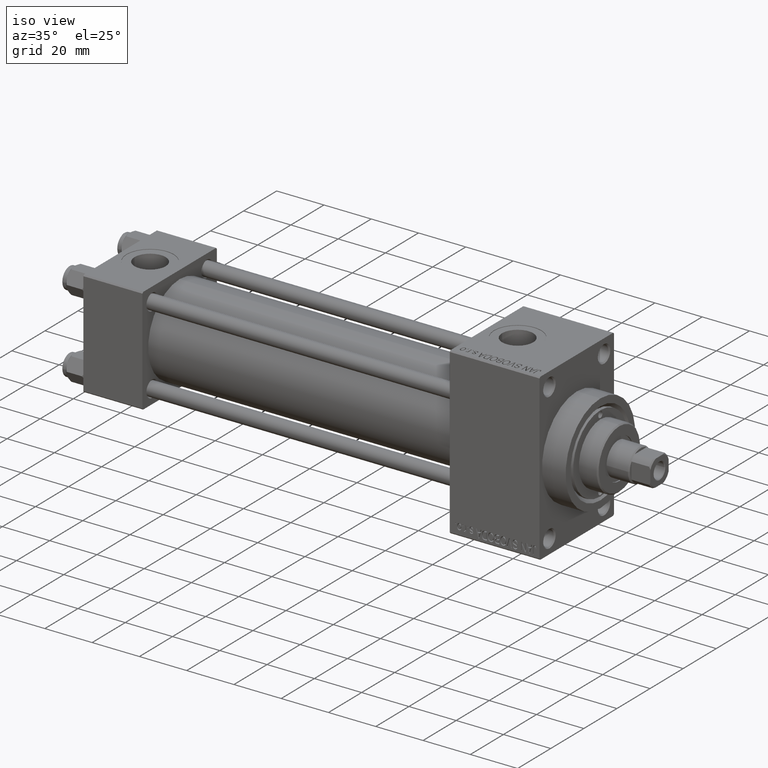
[diagram: clean part render]
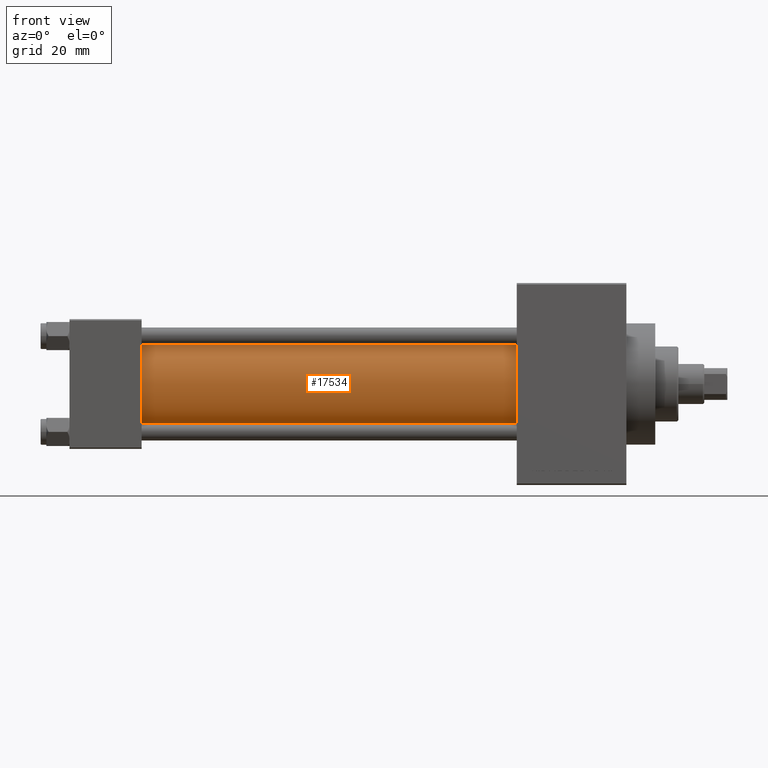
[diagram: tour spotlight — one face highlighted and labeled with its STEP entity id]
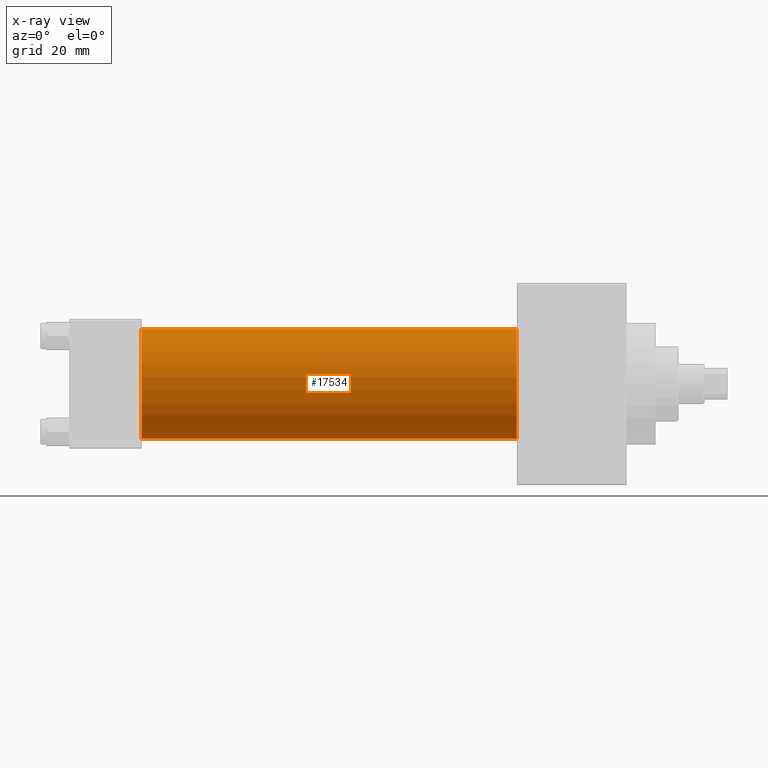
[diagram: x-ray of the same camera — body ghosted, this tour face saturated]
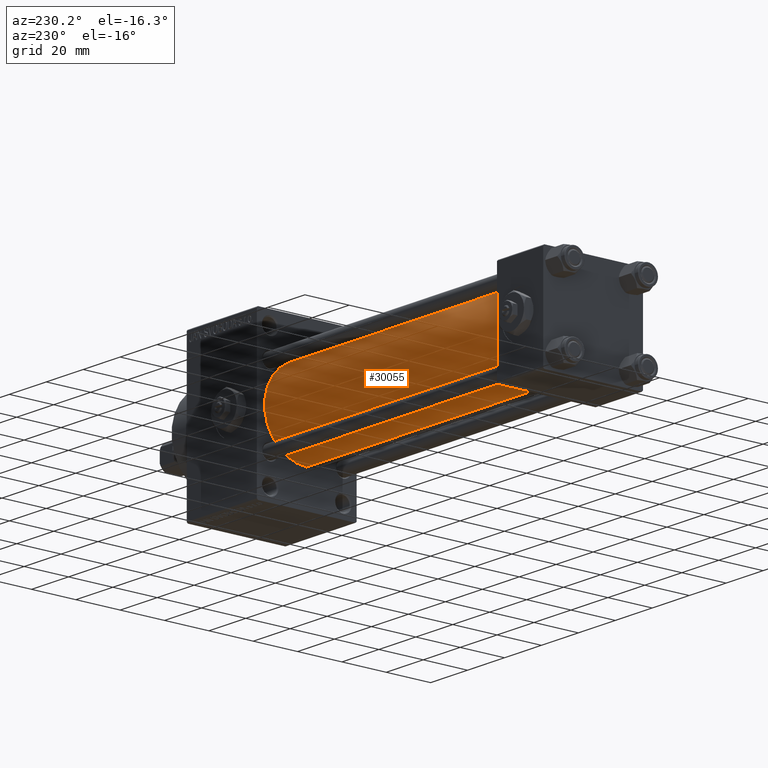
[diagram: tour spotlight — one face highlighted and labeled with its STEP entity id]
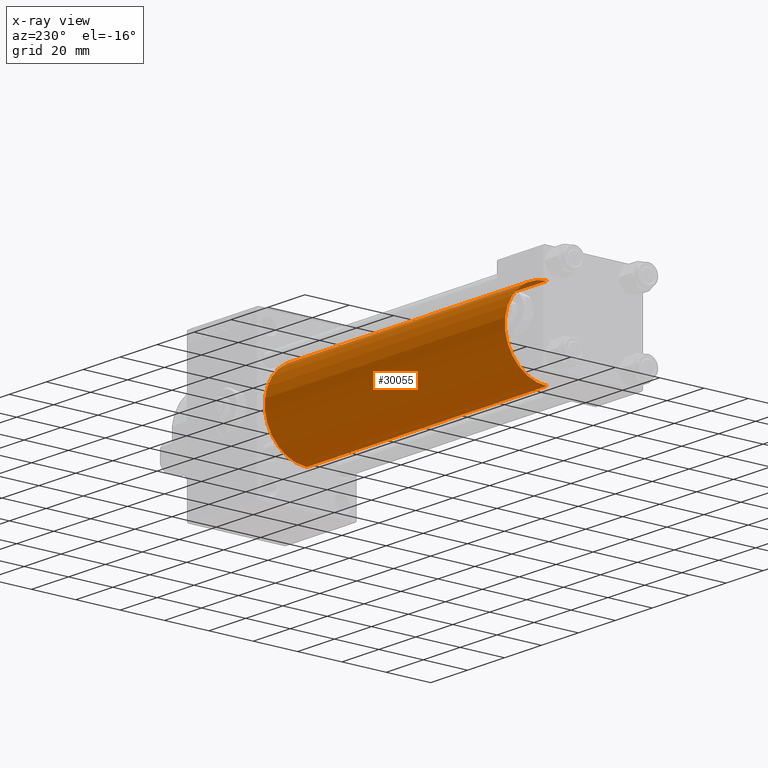
[diagram: x-ray of the same camera — body ghosted, this tour face saturated]
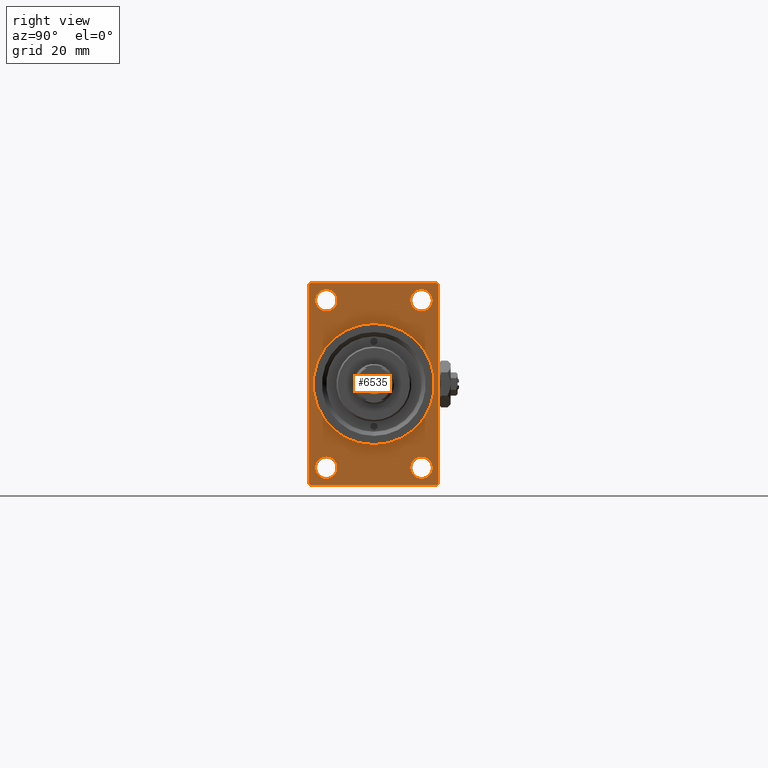
[diagram: tour spotlight — one face highlighted and labeled with its STEP entity id]
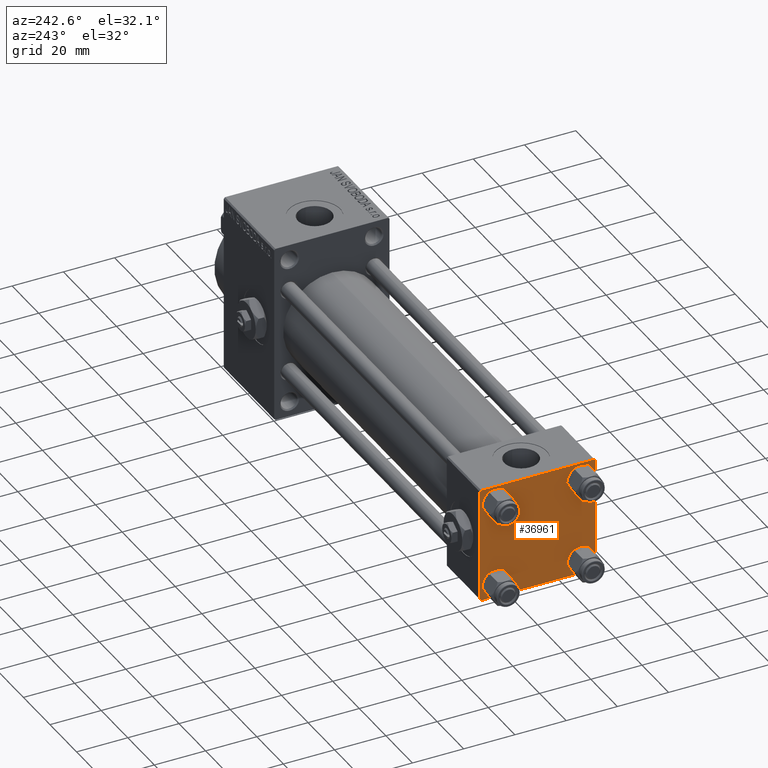
[diagram: tour spotlight — one face highlighted and labeled with its STEP entity id]
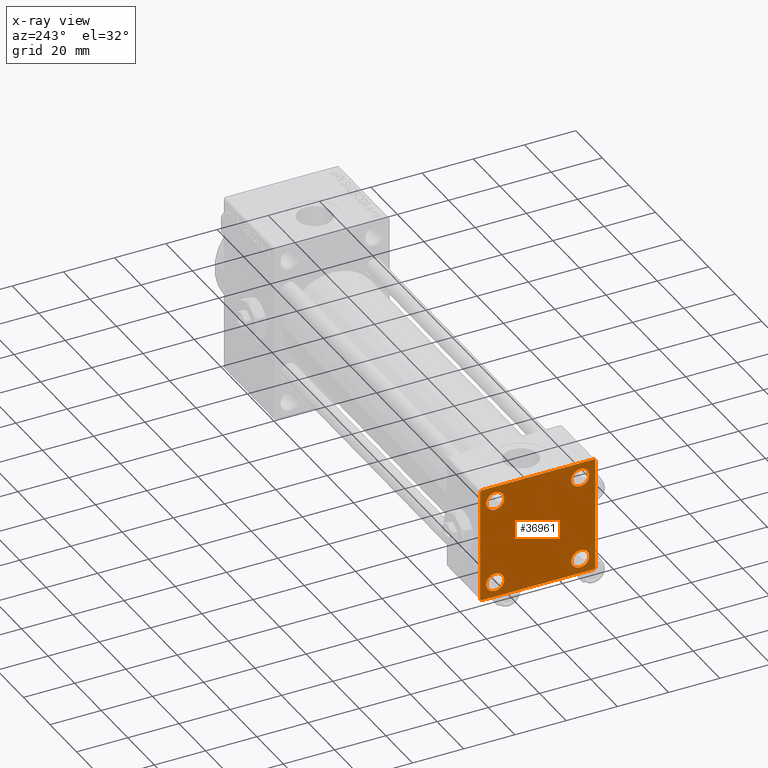
[diagram: x-ray of the same camera — body ghosted, this tour face saturated]
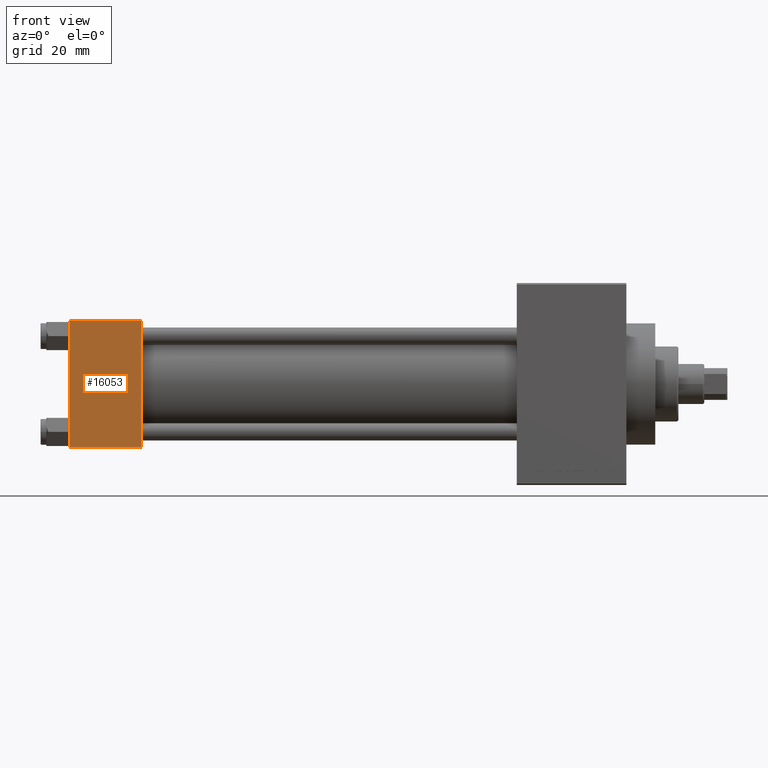
[diagram: tour spotlight — one face highlighted and labeled with its STEP entity id]
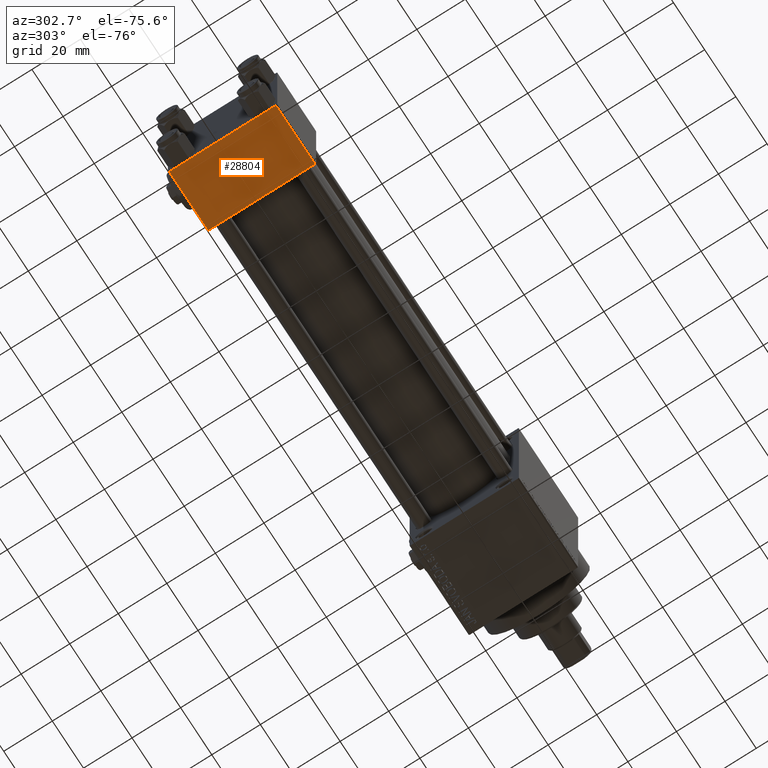
[diagram: tour spotlight — one face highlighted and labeled with its STEP entity id]
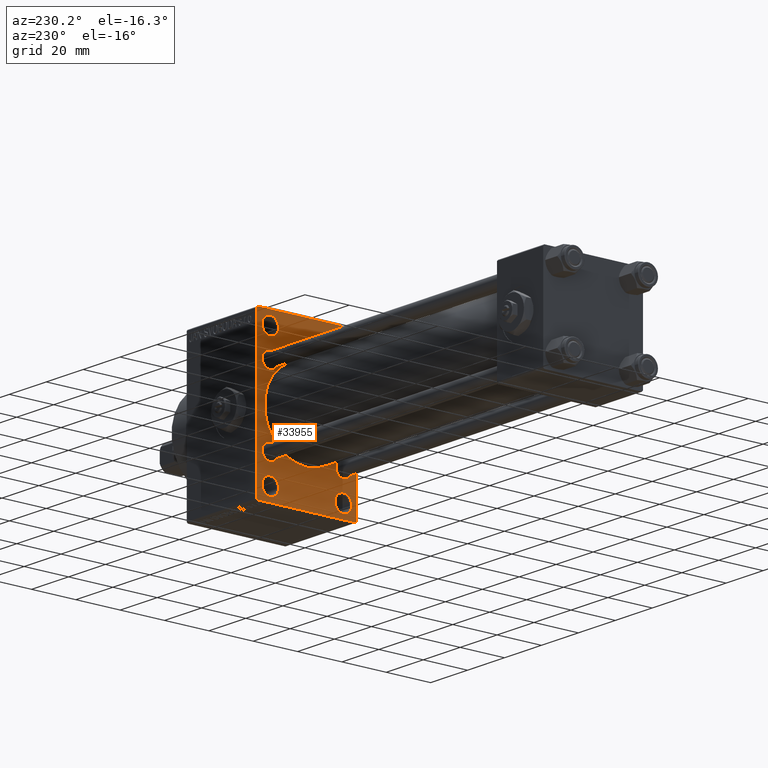
[diagram: tour spotlight — one face highlighted and labeled with its STEP entity id]
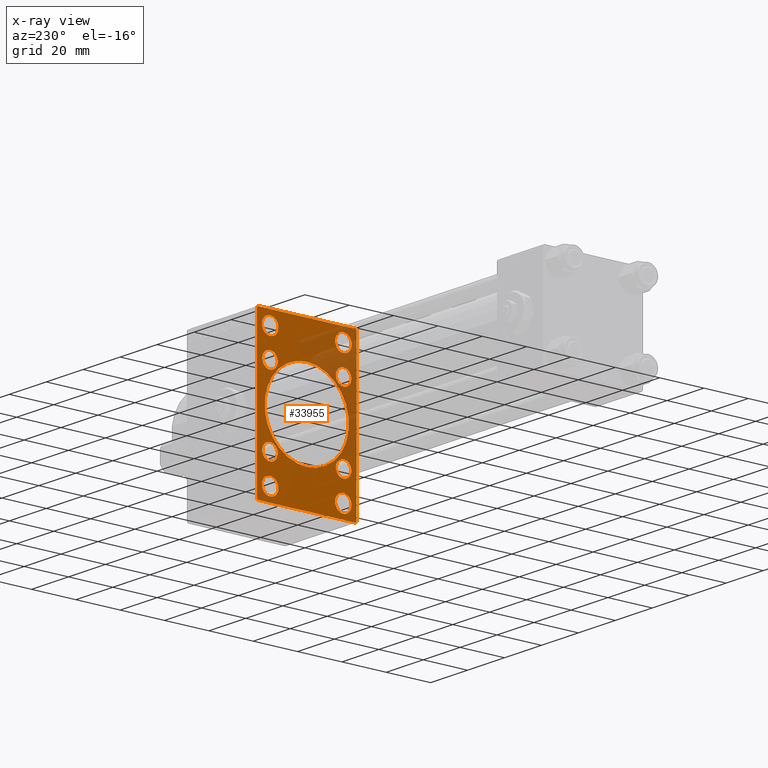
[diagram: x-ray of the same camera — body ghosted, this tour face saturated]
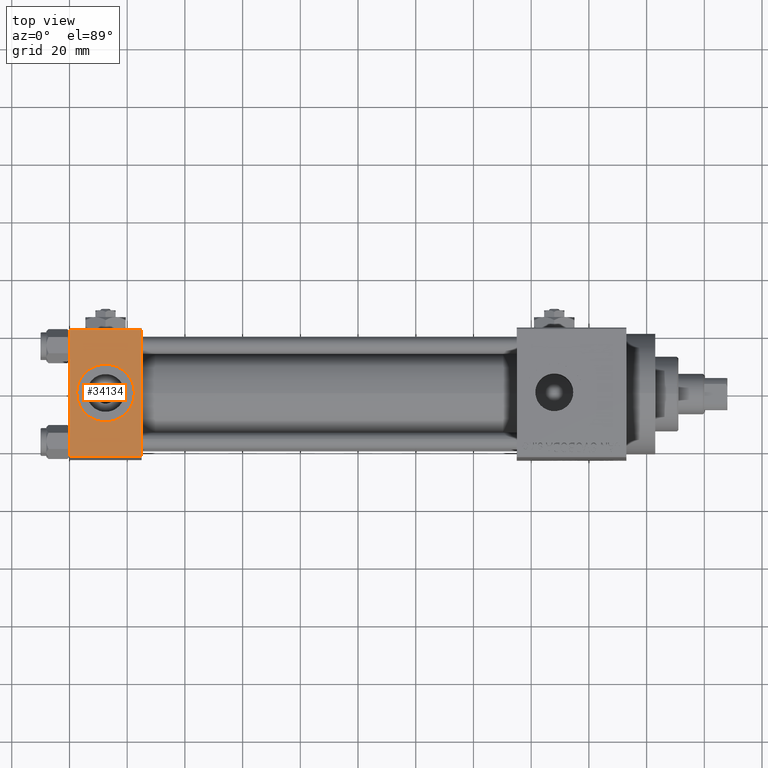
[diagram: tour spotlight — one face highlighted and labeled with its STEP entity id]
A machine part: a face-by-face anatomy tour. The part has 1209 B-rep faces; the first image is the clean iso view, then the 8 largest visible faces are spotlighted one at a time (largest first), each with its STEP entity span.

Face 1 — front view, entity #17534. An x-ray twin of the same camera follows (body ghosted, this face saturated) — the face is partly hidden behind the body. In plain terms, the highlighted cylindrical surface (partial cylindrical patch) has radius 19 mm, axis along (-1, -0, -0).
Definition (entity closure, byte-faithful):
#3418 = DIRECTION ( 'NONE',  ( 1.000000000000000000, 0.000000000000000000, 0.000000000000000000 ) ) ;
#3867 = DIRECTION ( 'NONE',  ( -1.000000000000000000, -0.000000000000000000, -0.000000000000000000 ) ) ;
#4155 = DIRECTION ( 'NONE',  ( 0.000000000000000000, 0.000000000000000000, -1.000000000000000000 ) ) ;
#4572 = EDGE_CURVE ( 'NONE', #40999, #31144, #42538, .T. ) ;
#4775 = VECTOR ( 'NONE', #10245, 1000.000000000000000 ) ;
#6177 = CYLINDRICAL_SURFACE ( 'NONE', #20118, 19.00000000000000000 ) ;
#9605 = CARTESIAN_POINT ( 'NONE',  ( 24.99999999999999289, -2.602085213965210642E-15, 0.000000000000000000 ) ) ;
#10245 = DIRECTION ( 'NONE',  ( -1.000000000000000000, -0.000000000000000000, -0.000000000000000000 ) ) ;
#13273 = CIRCLE ( 'NONE', #21940, 19.00000000000000000 ) ;
#13573 = CIRCLE ( 'NONE', #32628, 19.00000000000000000 ) ;
#14321 = VERTEX_POINT ( 'NONE', #24750 ) ;
#15579 = CARTESIAN_POINT ( 'NONE',  ( 155.0000000000000000, -2.752562955852396712E-16, -19.00000000000000000 ) ) ;
#17534 = ADVANCED_FACE ( 'NONE', ( #17882 ), #6177, .T. ) ;
#17882 = FACE_OUTER_BOUND ( 'NONE', #37729, .T. ) ;
#20118 = AXIS2_PLACEMENT_3D ( 'NONE', #21394, #49071, #37631 ) ;
#20584 = CARTESIAN_POINT ( 'NONE',  ( 24.99999999999999289, -2.752562955852396712E-16, -19.00000000000000000 ) ) ;
#21394 = CARTESIAN_POINT ( 'NONE',  ( 155.0000000000000000, -2.602085213965210642E-15, 0.000000000000000000 ) ) ;
#21940 = AXIS2_PLACEMENT_3D ( 'NONE', #29862, #3418, #4155 ) ;
#24750 = CARTESIAN_POINT ( 'NONE',  ( 155.0000000000000000, -2.602085213965210642E-15, 19.00000000000000000 ) ) ;
#26102 = ORIENTED_EDGE ( 'NONE', *, *, #4572, .F. ) ;
#27235 = EDGE_CURVE ( 'NONE', #14321, #40999, #13273, .T. ) ;
#27353 = ORIENTED_EDGE ( 'NONE', *, *, #31246, .T. ) ;
#28445 = EDGE_CURVE ( 'NONE', #14321, #33810, #44212, .T. ) ;
#29862 = CARTESIAN_POINT ( 'NONE',  ( 155.0000000000000000, -2.602085213965210642E-15, 0.000000000000000000 ) ) ;
#30350 = ORIENTED_EDGE ( 'NONE', *, *, #28445, .T. ) ;
#31144 = VERTEX_POINT ( 'NONE', #20584 ) ;
#31246 = EDGE_CURVE ( 'NONE', #33810, #31144, #13573, .T. ) ;
#32098 = DIRECTION ( 'NONE',  ( 1.000000000000000000, -0.000000000000000000, 0.000000000000000000 ) ) ;
#32628 = AXIS2_PLACEMENT_3D ( 'NONE', #9605, #32098, #48023 ) ;
#32986 = CARTESIAN_POINT ( 'NONE',  ( 155.0000000000000000, -2.602085213965210642E-15, 19.00000000000000000 ) ) ;
#33810 = VERTEX_POINT ( 'NONE', #48715 ) ;
#35716 = VECTOR ( 'NONE', #3867, 1000.000000000000000 ) ;
#37631 = DIRECTION ( 'NONE',  ( 0.000000000000000000, 0.000000000000000000, 1.000000000000000000 ) ) ;
#37729 = EDGE_LOOP ( 'NONE', ( #26102, #43482, #30350, #27353 ) ) ;
#40999 = VERTEX_POINT ( 'NONE', #43545 ) ;
#42538 = LINE ( 'NONE', #15579, #35716 ) ;
#43482 = ORIENTED_EDGE ( 'NONE', *, *, #27235, .F. ) ;
#43545 = CARTESIAN_POINT ( 'NONE',  ( 155.0000000000000000, -2.752562955852396712E-16, -19.00000000000000000 ) ) ;
#44212 = LINE ( 'NONE', #32986, #4775 ) ;
#48023 = DIRECTION ( 'NONE',  ( 0.000000000000000000, 0.000000000000000000, 1.000000000000000000 ) ) ;
#48715 = CARTESIAN_POINT ( 'NONE',  ( 24.99999999999999289, -2.602085213965210642E-15, 19.00000000000000000 ) ) ;
#49071 = DIRECTION ( 'NONE',  ( -1.000000000000000000, -0.000000000000000000, -0.000000000000000000 ) ) ;

Face 2 — auxiliary view, entity #30055. An x-ray twin of the same camera follows (body ghosted, this face saturated) — the face is partly hidden behind the body. In plain terms, the highlighted cylindrical surface (partial cylindrical patch) has radius 19 mm, axis along (-1, -0, -0).
Definition (entity closure, byte-faithful):
#3867 = DIRECTION ( 'NONE',  ( -1.000000000000000000, -0.000000000000000000, -0.000000000000000000 ) ) ;
#4572 = EDGE_CURVE ( 'NONE', #40999, #31144, #42538, .T. ) ;
#4649 = EDGE_CURVE ( 'NONE', #31144, #33810, #20553, .T. ) ;
#4775 = VECTOR ( 'NONE', #10245, 1000.000000000000000 ) ;
#5523 = CARTESIAN_POINT ( 'NONE',  ( 155.0000000000000000, -2.602085213965210642E-15, 0.000000000000000000 ) ) ;
#8344 = CARTESIAN_POINT ( 'NONE',  ( 24.99999999999999289, -2.602085213965210642E-15, 0.000000000000000000 ) ) ;
#9495 = DIRECTION ( 'NONE',  ( 0.000000000000000000, 0.000000000000000000, -1.000000000000000000 ) ) ;
#10245 = DIRECTION ( 'NONE',  ( -1.000000000000000000, -0.000000000000000000, -0.000000000000000000 ) ) ;
#11075 = DIRECTION ( 'NONE',  ( 0.000000000000000000, 0.000000000000000000, 1.000000000000000000 ) ) ;
#11119 = DIRECTION ( 'NONE',  ( -1.000000000000000000, -0.000000000000000000, -0.000000000000000000 ) ) ;
#14321 = VERTEX_POINT ( 'NONE', #24750 ) ;
#14625 = CYLINDRICAL_SURFACE ( 'NONE', #48631, 19.00000000000000000 ) ;
#14876 = DIRECTION ( 'NONE',  ( 0.000000000000000000, 0.000000000000000000, 1.000000000000000000 ) ) ;
#15579 = CARTESIAN_POINT ( 'NONE',  ( 155.0000000000000000, -2.752562955852396712E-16, -19.00000000000000000 ) ) ;
#17476 = EDGE_LOOP ( 'NONE', ( #26948, #33455, #34117, #21149 ) ) ;
#18826 = DIRECTION ( 'NONE',  ( 1.000000000000000000, -0.000000000000000000, 0.000000000000000000 ) ) ;
#20553 = CIRCLE ( 'NONE', #22958, 19.00000000000000000 ) ;
#20584 = CARTESIAN_POINT ( 'NONE',  ( 24.99999999999999289, -2.752562955852396712E-16, -19.00000000000000000 ) ) ;
#21149 = ORIENTED_EDGE ( 'NONE', *, *, #28445, .F. ) ;
#22958 = AXIS2_PLACEMENT_3D ( 'NONE', #8344, #18826, #11075 ) ;
#23102 = FACE_OUTER_BOUND ( 'NONE', #17476, .T. ) ;
#24562 = EDGE_CURVE ( 'NONE', #40999, #14321, #46662, .T. ) ;
#24750 = CARTESIAN_POINT ( 'NONE',  ( 155.0000000000000000, -2.602085213965210642E-15, 19.00000000000000000 ) ) ;
#26109 = CARTESIAN_POINT ( 'NONE',  ( 155.0000000000000000, -2.602085213965210642E-15, 0.000000000000000000 ) ) ;
#26948 = ORIENTED_EDGE ( 'NONE', *, *, #24562, .F. ) ;
#28445 = EDGE_CURVE ( 'NONE', #14321, #33810, #44212, .T. ) ;
#29136 = AXIS2_PLACEMENT_3D ( 'NONE', #5523, #39967, #9495 ) ;
#30055 = ADVANCED_FACE ( 'NONE', ( #23102 ), #14625, .T. ) ;
#31144 = VERTEX_POINT ( 'NONE', #20584 ) ;
#32986 = CARTESIAN_POINT ( 'NONE',  ( 155.0000000000000000, -2.602085213965210642E-15, 19.00000000000000000 ) ) ;
#33455 = ORIENTED_EDGE ( 'NONE', *, *, #4572, .T. ) ;
#33810 = VERTEX_POINT ( 'NONE', #48715 ) ;
#34117 = ORIENTED_EDGE ( 'NONE', *, *, #4649, .T. ) ;
#35716 = VECTOR ( 'NONE', #3867, 1000.000000000000000 ) ;
#39967 = DIRECTION ( 'NONE',  ( 1.000000000000000000, 0.000000000000000000, 0.000000000000000000 ) ) ;
#40999 = VERTEX_POINT ( 'NONE', #43545 ) ;
#42538 = LINE ( 'NONE', #15579, #35716 ) ;
#43545 = CARTESIAN_POINT ( 'NONE',  ( 155.0000000000000000, -2.752562955852396712E-16, -19.00000000000000000 ) ) ;
#44212 = LINE ( 'NONE', #32986, #4775 ) ;
#46662 = CIRCLE ( 'NONE', #29136, 19.00000000000000000 ) ;
#48631 = AXIS2_PLACEMENT_3D ( 'NONE', #26109, #11119, #14876 ) ;
#48715 = CARTESIAN_POINT ( 'NONE',  ( 24.99999999999999289, -2.602085213965210642E-15, 19.00000000000000000 ) ) ;

Face 3 — right view, entity #6535. In plain terms, the highlighted planar face has unit normal (-1, 0, 0).
Definition (entity closure, byte-faithful):
#11 = CARTESIAN_POINT ( 'NONE',  ( 193.0000000000000000, -22.50000000000000355, 34.50000000000000000 ) ) ;
#394 = CIRCLE ( 'NONE', #28269, 3.750000000000083045 ) ;
#415 = VECTOR ( 'NONE', #41721, 1000.000000000000114 ) ;
#511 = EDGE_CURVE ( 'NONE', #22625, #29314, #3801, .T. ) ;
#516 = CARTESIAN_POINT ( 'NONE',  ( 193.0000000000000000, 22.49999999999999645, 35.00000000000000000 ) ) ;
#519 = ORIENTED_EDGE ( 'NONE', *, *, #44857, .T. ) ;
#1071 = EDGE_CURVE ( 'NONE', #11687, #27825, #22825, .T. ) ;
#1430 = VERTEX_POINT ( 'NONE', #21723 ) ;
#1616 = ORIENTED_EDGE ( 'NONE', *, *, #22415, .T. ) ;
#1631 = EDGE_CURVE ( 'NONE', #33357, #11687, #37218, .T. ) ;
#2189 = EDGE_CURVE ( 'NONE', #21385, #1430, #20486, .T. ) ;
#2436 = VERTEX_POINT ( 'NONE', #22859 ) ;
#3137 = FACE_BOUND ( 'NONE', #19921, .T. ) ;
#3491 = VERTEX_POINT ( 'NONE', #4228 ) ;
#3507 = LINE ( 'NONE', #516, #28857 ) ;
#3523 = ORIENTED_EDGE ( 'NONE', *, *, #1631, .T. ) ;
#3801 = LINE ( 'NONE', #22019, #15165 ) ;
#4228 = CARTESIAN_POINT ( 'NONE',  ( 193.0000000000000000, 22.49999999999999645, 34.50000000000000000 ) ) ;
#4303 = VERTEX_POINT ( 'NONE', #48090 ) ;
#5357 = EDGE_CURVE ( 'NONE', #21933, #2436, #18993, .T. ) ;
#5767 = VECTOR ( 'NONE', #14835, 1000.000000000000000 ) ;
#6535 = ADVANCED_FACE ( 'NONE', ( #21353, #17590, #3137, #29830, #7116, #31073 ), #46278, .F. ) ;
#7058 = EDGE_CURVE ( 'NONE', #34478, #33357, #46943, .T. ) ;
#7116 = FACE_BOUND ( 'NONE', #33068, .T. ) ;
#7242 = VERTEX_POINT ( 'NONE', #33715 ) ;
#7270 = DIRECTION ( 'NONE',  ( 0.000000000000000000, 0.000000000000000000, 1.000000000000000000 ) ) ;
#7385 = CIRCLE ( 'NONE', #26400, 3.750000000000086597 ) ;
#7431 = CARTESIAN_POINT ( 'NONE',  ( 193.0000000000000000, -21.99999999999998934, 35.00000000000000000 ) ) ;
#7488 = DIRECTION ( 'NONE',  ( -0.000000000000000000, -0.7071067811865474617, -0.7071067811865474617 ) ) ;
#7803 = EDGE_CURVE ( 'NONE', #2436, #21933, #46183, .T. ) ;
#7881 = ORIENTED_EDGE ( 'NONE', *, *, #511, .F. ) ;
#8397 = DIRECTION ( 'NONE',  ( -1.000000000000000000, -0.000000000000000000, -0.000000000000000000 ) ) ;
#8788 = EDGE_LOOP ( 'NONE', ( #26428, #28320 ) ) ;
#8966 = CARTESIAN_POINT ( 'NONE',  ( 193.0000000000000000, -16.50000000000000000, -25.24999999999990763 ) ) ;
#9993 = ORIENTED_EDGE ( 'NONE', *, *, #14512, .T. ) ;
#9999 = CARTESIAN_POINT ( 'NONE',  ( 193.0000000000000000, -22.00000000000000355, -35.00000000000000000 ) ) ;
#10265 = CARTESIAN_POINT ( 'NONE',  ( 193.0000000000000000, -16.50000000000000000, 29.00000000000000711 ) ) ;
#10371 = CARTESIAN_POINT ( 'NONE',  ( 193.0000000000000000, 0.000000000000000000, 21.00000000000000000 ) ) ;
#10565 = VERTEX_POINT ( 'NONE', #8966 ) ;
#11388 = CIRCLE ( 'NONE', #32190, 3.750000000000090150 ) ;
#11687 = VERTEX_POINT ( 'NONE', #18564 ) ;
#12396 = AXIS2_PLACEMENT_3D ( 'NONE', #20476, #46934, #16484 ) ;
#12502 = CARTESIAN_POINT ( 'NONE',  ( 193.0000000000000000, -16.50000000000000000, -28.99999999999999289 ) ) ;
#13327 = CARTESIAN_POINT ( 'NONE',  ( 193.0000000000000000, -21.99999999999998934, -35.00000000000000000 ) ) ;
#13457 = EDGE_CURVE ( 'NONE', #3491, #46268, #3507, .T. ) ;
#13943 = AXIS2_PLACEMENT_3D ( 'NONE', #14644, #45100, #46082 ) ;
#14351 = CARTESIAN_POINT ( 'NONE',  ( 193.0000000000000000, 21.99999999999999645, 35.00000000000000000 ) ) ;
#14512 = EDGE_CURVE ( 'NONE', #44821, #7242, #7385, .T. ) ;
#14514 = DIRECTION ( 'NONE',  ( 0.000000000000000000, -1.000000000000000000, 0.000000000000000000 ) ) ;
#14584 = CARTESIAN_POINT ( 'NONE',  ( 193.0000000000000000, -22.50000000000000355, 35.00000000000000000 ) ) ;
#14644 = CARTESIAN_POINT ( 'NONE',  ( 193.0000000000000000, 0.000000000000000000, 0.000000000000000000 ) ) ;
#14835 = DIRECTION ( 'NONE',  ( 0.000000000000000000, 0.000000000000000000, -1.000000000000000000 ) ) ;
#14988 = ORIENTED_EDGE ( 'NONE', *, *, #13457, .F. ) ;
#15165 = VECTOR ( 'NONE', #14514, 1000.000000000000000 ) ;
#15514 = AXIS2_PLACEMENT_3D ( 'NONE', #45063, #29839, #37344 ) ;
#16484 = DIRECTION ( 'NONE',  ( 0.000000000000000000, 0.000000000000000000, 1.000000000000000000 ) ) ;
#17412 = AXIS2_PLACEMENT_3D ( 'NONE', #23372, #8397, #41610 ) ;
#17590 = FACE_BOUND ( 'NONE', #8788, .T. ) ;
#17911 = CARTESIAN_POINT ( 'NONE',  ( 193.0000000000000000, -22.50000000000000355, -34.50000000000000000 ) ) ;
#18224 = ORIENTED_EDGE ( 'NONE', *, *, #1071, .T. ) ;
#18564 = CARTESIAN_POINT ( 'NONE',  ( 193.0000000000000000, -22.50000000000000355, 34.50000000000000000 ) ) ;
#18729 = CIRCLE ( 'NONE', #13943, 21.00000000000000000 ) ;
#18782 = DIRECTION ( 'NONE',  ( -1.000000000000000000, -0.000000000000000000, -0.000000000000000000 ) ) ;
#18984 = DIRECTION ( 'NONE',  ( -1.000000000000000000, -0.000000000000000000, -0.000000000000000000 ) ) ;
#18993 = CIRCLE ( 'NONE', #17412, 3.750000000000090150 ) ;
#18996 = EDGE_CURVE ( 'NONE', #10565, #37507, #11388, .T. ) ;
#19184 = CIRCLE ( 'NONE', #47064, 3.750000000000086597 ) ;
#19921 = EDGE_LOOP ( 'NONE', ( #35089, #28332 ) ) ;
#19997 = VECTOR ( 'NONE', #40958, 1000.000000000000114 ) ;
#20201 = ORIENTED_EDGE ( 'NONE', *, *, #35027, .T. ) ;
#20476 = CARTESIAN_POINT ( 'NONE',  ( 193.0000000000000000, -16.50000000000000000, -28.99999999999999289 ) ) ;
#20486 = CIRCLE ( 'NONE', #48378, 3.750000000000083045 ) ;
#20999 = CIRCLE ( 'NONE', #15514, 21.00000000000000000 ) ;
#21005 = DIRECTION ( 'NONE',  ( 0.000000000000000000, 0.000000000000000000, 1.000000000000000000 ) ) ;
#21353 = FACE_BOUND ( 'NONE', #26359, .T. ) ;
#21385 = VERTEX_POINT ( 'NONE', #33088 ) ;
#21519 = EDGE_LOOP ( 'NONE', ( #18224, #20201, #7881, #1616, #14988, #519, #36967, #3523 ) ) ;
#21723 = CARTESIAN_POINT ( 'NONE',  ( 193.0000000000000000, -16.50000000000000000, 32.75000000000009237 ) ) ;
#21933 = VERTEX_POINT ( 'NONE', #27742 ) ;
#22019 = CARTESIAN_POINT ( 'NONE',  ( 193.0000000000000000, 22.49999999999999645, -35.00000000000000000 ) ) ;
#22310 = ORIENTED_EDGE ( 'NONE', *, *, #34568, .T. ) ;
#22415 = EDGE_CURVE ( 'NONE', #22625, #46268, #37993, .T. ) ;
#22532 = DIRECTION ( 'NONE',  ( 0.000000000000000000, 0.000000000000000000, 1.000000000000000000 ) ) ;
#22625 = VERTEX_POINT ( 'NONE', #32691 ) ;
#22825 = LINE ( 'NONE', #14584, #5767 ) ;
#22859 = CARTESIAN_POINT ( 'NONE',  ( 193.0000000000000000, 16.50000000000000000, -25.24999999999990763 ) ) ;
#23372 = CARTESIAN_POINT ( 'NONE',  ( 193.0000000000000000, 16.50000000000000000, -28.99999999999999289 ) ) ;
#23518 = DIRECTION ( 'NONE',  ( 0.000000000000000000, -1.000000000000000000, 0.000000000000000000 ) ) ;
#23698 = EDGE_CURVE ( 'NONE', #45707, #4303, #18729, .T. ) ;
#23745 = DIRECTION ( 'NONE',  ( -1.000000000000000000, -0.000000000000000000, -0.000000000000000000 ) ) ;
#23788 = ORIENTED_EDGE ( 'NONE', *, *, #2189, .T. ) ;
#24241 = CARTESIAN_POINT ( 'NONE',  ( 193.0000000000000000, -16.50000000000000000, 29.00000000000000711 ) ) ;
#24978 = VECTOR ( 'NONE', #37346, 1000.000000000000114 ) ;
#26090 = CARTESIAN_POINT ( 'NONE',  ( 193.0000000000000000, 16.50000000000000000, 32.75000000000009237 ) ) ;
#26359 = EDGE_LOOP ( 'NONE', ( #23788, #46773 ) ) ;
#26400 = AXIS2_PLACEMENT_3D ( 'NONE', #29977, #18984, #7270 ) ;
#26428 = ORIENTED_EDGE ( 'NONE', *, *, #49212, .T. ) ;
#26832 = DIRECTION ( 'NONE',  ( -0.000000000000000000, 0.000000000000000000, 1.000000000000000000 ) ) ;
#27742 = CARTESIAN_POINT ( 'NONE',  ( 193.0000000000000000, 16.50000000000000000, -32.75000000000008527 ) ) ;
#27825 = VERTEX_POINT ( 'NONE', #17911 ) ;
#28269 = AXIS2_PLACEMENT_3D ( 'NONE', #24241, #40463, #21005 ) ;
#28320 = ORIENTED_EDGE ( 'NONE', *, *, #18996, .T. ) ;
#28332 = ORIENTED_EDGE ( 'NONE', *, *, #7803, .T. ) ;
#28857 = VECTOR ( 'NONE', #30197, 1000.000000000000000 ) ;
#29314 = VERTEX_POINT ( 'NONE', #13327 ) ;
#29830 = FACE_BOUND ( 'NONE', #44606, .T. ) ;
#29839 = DIRECTION ( 'NONE',  ( 1.000000000000000000, 0.000000000000000000, 0.000000000000000000 ) ) ;
#29977 = CARTESIAN_POINT ( 'NONE',  ( 193.0000000000000000, 16.50000000000000000, 29.00000000000000355 ) ) ;
#30197 = DIRECTION ( 'NONE',  ( 0.000000000000000000, 0.000000000000000000, -1.000000000000000000 ) ) ;
#31073 = FACE_OUTER_BOUND ( 'NONE', #21519, .T. ) ;
#31823 = AXIS2_PLACEMENT_3D ( 'NONE', #45236, #18782, #22532 ) ;
#32190 = AXIS2_PLACEMENT_3D ( 'NONE', #12502, #23745, #38989 ) ;
#32520 = DIRECTION ( 'NONE',  ( 0.000000000000000000, 0.000000000000000000, 1.000000000000000000 ) ) ;
#32691 = CARTESIAN_POINT ( 'NONE',  ( 193.0000000000000000, 21.99999999999999645, -35.00000000000000000 ) ) ;
#33068 = EDGE_LOOP ( 'NONE', ( #44904, #46307 ) ) ;
#33088 = CARTESIAN_POINT ( 'NONE',  ( 193.0000000000000000, -16.50000000000000000, 25.24999999999992539 ) ) ;
#33357 = VERTEX_POINT ( 'NONE', #7431 ) ;
#33531 = DIRECTION ( 'NONE',  ( 0.000000000000000000, 0.000000000000000000, 1.000000000000000000 ) ) ;
#33715 = CARTESIAN_POINT ( 'NONE',  ( 193.0000000000000000, 16.50000000000000000, 25.24999999999991829 ) ) ;
#33940 = CIRCLE ( 'NONE', #12396, 3.750000000000090150 ) ;
#34478 = VERTEX_POINT ( 'NONE', #48591 ) ;
#34568 = EDGE_CURVE ( 'NONE', #7242, #44821, #19184, .T. ) ;
#35027 = EDGE_CURVE ( 'NONE', #27825, #29314, #44205, .T. ) ;
#35089 = ORIENTED_EDGE ( 'NONE', *, *, #5357, .T. ) ;
#36014 = DIRECTION ( 'NONE',  ( -1.000000000000000000, -0.000000000000000000, -0.000000000000000000 ) ) ;
#36967 = ORIENTED_EDGE ( 'NONE', *, *, #7058, .T. ) ;
#37029 = CARTESIAN_POINT ( 'NONE',  ( 193.0000000000000000, 16.50000000000000000, 29.00000000000000355 ) ) ;
#37218 = LINE ( 'NONE', #11, #38463 ) ;
#37344 = DIRECTION ( 'NONE',  ( 0.000000000000000000, 0.000000000000000000, -1.000000000000000000 ) ) ;
#37346 = DIRECTION ( 'NONE',  ( 0.000000000000000000, -0.7071067811865474617, 0.7071067811865474617 ) ) ;
#37507 = VERTEX_POINT ( 'NONE', #48391 ) ;
#37529 = DIRECTION ( 'NONE',  ( -1.000000000000000000, -0.000000000000000000, -0.000000000000000000 ) ) ;
#37993 = LINE ( 'NONE', #38234, #415 ) ;
#38230 = VECTOR ( 'NONE', #23518, 1000.000000000000000 ) ;
#38234 = CARTESIAN_POINT ( 'NONE',  ( 193.0000000000000000, 22.49999999999999645, -34.50000000000000000 ) ) ;
#38463 = VECTOR ( 'NONE', #7488, 1000.000000000000114 ) ;
#38989 = DIRECTION ( 'NONE',  ( 0.000000000000000000, 0.000000000000000000, 1.000000000000000000 ) ) ;
#40463 = DIRECTION ( 'NONE',  ( -1.000000000000000000, -0.000000000000000000, -0.000000000000000000 ) ) ;
#40958 = DIRECTION ( 'NONE',  ( 0.000000000000000000, 0.7071067811865474617, -0.7071067811865474617 ) ) ;
#40975 = CARTESIAN_POINT ( 'NONE',  ( 193.0000000000000000, 22.49999999999999645, -34.50000000000000000 ) ) ;
#41383 = AXIS2_PLACEMENT_3D ( 'NONE', #49267, #45784, #26832 ) ;
#41569 = LINE ( 'NONE', #14351, #24978 ) ;
#41610 = DIRECTION ( 'NONE',  ( 0.000000000000000000, 0.000000000000000000, 1.000000000000000000 ) ) ;
#41721 = DIRECTION ( 'NONE',  ( -0.000000000000000000, 0.7071067811865474617, 0.7071067811865474617 ) ) ;
#43214 = CARTESIAN_POINT ( 'NONE',  ( 193.0000000000000000, 22.49999999999999645, 35.00000000000000000 ) ) ;
#43521 = EDGE_CURVE ( 'NONE', #4303, #45707, #20999, .T. ) ;
#43961 = EDGE_CURVE ( 'NONE', #1430, #21385, #394, .T. ) ;
#44205 = LINE ( 'NONE', #9999, #19997 ) ;
#44606 = EDGE_LOOP ( 'NONE', ( #22310, #9993 ) ) ;
#44821 = VERTEX_POINT ( 'NONE', #26090 ) ;
#44857 = EDGE_CURVE ( 'NONE', #3491, #34478, #41569, .T. ) ;
#44904 = ORIENTED_EDGE ( 'NONE', *, *, #23698, .F. ) ;
#45063 = CARTESIAN_POINT ( 'NONE',  ( 193.0000000000000000, 0.000000000000000000, 0.000000000000000000 ) ) ;
#45100 = DIRECTION ( 'NONE',  ( 1.000000000000000000, 0.000000000000000000, 0.000000000000000000 ) ) ;
#45236 = CARTESIAN_POINT ( 'NONE',  ( 193.0000000000000000, 16.50000000000000000, -28.99999999999999289 ) ) ;
#45707 = VERTEX_POINT ( 'NONE', #10371 ) ;
#45784 = DIRECTION ( 'NONE',  ( -1.000000000000000000, 0.000000000000000000, -0.000000000000000000 ) ) ;
#46082 = DIRECTION ( 'NONE',  ( 0.000000000000000000, 0.000000000000000000, -1.000000000000000000 ) ) ;
#46183 = CIRCLE ( 'NONE', #31823, 3.750000000000090150 ) ;
#46268 = VERTEX_POINT ( 'NONE', #40975 ) ;
#46278 = PLANE ( 'NONE',  #41383 ) ;
#46307 = ORIENTED_EDGE ( 'NONE', *, *, #43521, .F. ) ;
#46773 = ORIENTED_EDGE ( 'NONE', *, *, #43961, .T. ) ;
#46934 = DIRECTION ( 'NONE',  ( -1.000000000000000000, -0.000000000000000000, -0.000000000000000000 ) ) ;
#46943 = LINE ( 'NONE', #43214, #38230 ) ;
#47064 = AXIS2_PLACEMENT_3D ( 'NONE', #37029, #37529, #33531 ) ;
#48090 = CARTESIAN_POINT ( 'NONE',  ( 193.0000000000000000, 2.571758278209441661E-15, -21.00000000000000000 ) ) ;
#48378 = AXIS2_PLACEMENT_3D ( 'NONE', #10265, #36014, #32520 ) ;
#48391 = CARTESIAN_POINT ( 'NONE',  ( 193.0000000000000000, -16.50000000000000000, -32.75000000000008527 ) ) ;
#48591 = CARTESIAN_POINT ( 'NONE',  ( 193.0000000000000000, 21.99999999999999645, 35.00000000000000000 ) ) ;
#49212 = EDGE_CURVE ( 'NONE', #37507, #10565, #33940, .T. ) ;
#49267 = CARTESIAN_POINT ( 'NONE',  ( 193.0000000000000000, 0.000000000000000000, 0.000000000000000000 ) ) ;

Face 4 — auxiliary view, entity #36961. An x-ray twin of the same camera follows (body ghosted, this face saturated) — the face is partly hidden behind the body. In plain terms, the highlighted planar face has unit normal (-1, 0, 0).
Definition (entity closure, byte-faithful):
#130 = DIRECTION ( 'NONE',  ( 0.000000000000000000, -1.000000000000000000, -7.709882115452476934E-17 ) ) ;
#194 = CARTESIAN_POINT ( 'NONE',  ( 0.000000000000000000, -22.50000000000000000, 22.50000000000000000 ) ) ;
#1064 = AXIS2_PLACEMENT_3D ( 'NONE', #11607, #38592, #43470 ) ;
#1095 = CIRCLE ( 'NONE', #1064, 3.499999999999996003 ) ;
#1332 = DIRECTION ( 'NONE',  ( 1.000000000000000000, -0.000000000000000000, 0.000000000000000000 ) ) ;
#1347 = DIRECTION ( 'NONE',  ( 0.000000000000000000, 0.000000000000000000, 1.000000000000000000 ) ) ;
#1493 = CARTESIAN_POINT ( 'NONE',  ( 0.000000000000000000, 16.59999999999999787, 13.10000000000000675 ) ) ;
#1601 = EDGE_CURVE ( 'NONE', #19255, #2936, #6753, .T. ) ;
#2661 = EDGE_CURVE ( 'NONE', #49233, #6155, #9102, .T. ) ;
#2931 = FACE_BOUND ( 'NONE', #5370, .T. ) ;
#2936 = VERTEX_POINT ( 'NONE', #40250 ) ;
#2999 = DIRECTION ( 'NONE',  ( 0.000000000000000000, 0.000000000000000000, 1.000000000000000000 ) ) ;
#3118 = VECTOR ( 'NONE', #49324, 1000.000000000000000 ) ;
#3132 = CIRCLE ( 'NONE', #32736, 3.499999999999996003 ) ;
#3336 = CIRCLE ( 'NONE', #16868, 3.499999999999996003 ) ;
#3848 = EDGE_CURVE ( 'NONE', #14183, #11655, #28514, .T. ) ;
#4094 = ORIENTED_EDGE ( 'NONE', *, *, #39920, .T. ) ;
#4160 = EDGE_CURVE ( 'NONE', #24441, #13091, #42413, .T. ) ;
#4246 = CARTESIAN_POINT ( 'NONE',  ( 0.000000000000000000, 16.59999999999999787, 20.10000000000000142 ) ) ;
#4472 = CIRCLE ( 'NONE', #43496, 3.499999999999996003 ) ;
#4966 = CIRCLE ( 'NONE', #24069, 3.499999999999996003 ) ;
#5124 = ORIENTED_EDGE ( 'NONE', *, *, #6297, .F. ) ;
#5224 = CARTESIAN_POINT ( 'NONE',  ( 0.000000000000000000, 22.50000000000000000, -21.99999999999996803 ) ) ;
#5370 = EDGE_LOOP ( 'NONE', ( #33673, #4094 ) ) ;
#6155 = VERTEX_POINT ( 'NONE', #14655 ) ;
#6297 = EDGE_CURVE ( 'NONE', #24441, #6155, #31126, .T. ) ;
#6345 = DIRECTION ( 'NONE',  ( 0.000000000000000000, -0.7071067811865426878, 0.7071067811865524577 ) ) ;
#6753 = LINE ( 'NONE', #44671, #46404 ) ;
#6915 = PLANE ( 'NONE',  #34452 ) ;
#8103 = CARTESIAN_POINT ( 'NONE',  ( 0.000000000000000000, 22.50000000000000000, 22.50000000000000355 ) ) ;
#8552 = CARTESIAN_POINT ( 'NONE',  ( 0.000000000000000000, 22.50000000000000000, -22.49999999999999645 ) ) ;
#9062 = DIRECTION ( 'NONE',  ( 1.000000000000000000, -0.000000000000000000, 0.000000000000000000 ) ) ;
#9088 = VECTOR ( 'NONE', #42015, 1000.000000000000000 ) ;
#9102 = LINE ( 'NONE', #25059, #31657 ) ;
#9198 = CIRCLE ( 'NONE', #14790, 3.499999999999996003 ) ;
#9974 = DIRECTION ( 'NONE',  ( 0.000000000000000000, 0.7071067811865474617, -0.7071067811865474617 ) ) ;
#10143 = FACE_BOUND ( 'NONE', #32823, .T. ) ;
#11085 = CARTESIAN_POINT ( 'NONE',  ( 0.000000000000000000, -21.99999999999997868, 22.50000000000000000 ) ) ;
#11336 = DIRECTION ( 'NONE',  ( 1.000000000000000000, -0.000000000000000000, 0.000000000000000000 ) ) ;
#11607 = CARTESIAN_POINT ( 'NONE',  ( 0.000000000000000000, 16.59999999999999787, 16.60000000000000497 ) ) ;
#11655 = VERTEX_POINT ( 'NONE', #37072 ) ;
#11693 = CARTESIAN_POINT ( 'NONE',  ( 0.000000000000000000, -16.59999999999999076, 13.10000000000001030 ) ) ;
#11954 = EDGE_CURVE ( 'NONE', #12523, #44277, #3336, .T. ) ;
#12523 = VERTEX_POINT ( 'NONE', #4246 ) ;
#12632 = CARTESIAN_POINT ( 'NONE',  ( 0.000000000000000000, 21.99999999999999289, 22.50000000000000355 ) ) ;
#12718 = ORIENTED_EDGE ( 'NONE', *, *, #35654, .T. ) ;
#12735 = LINE ( 'NONE', #8103, #46670 ) ;
#13091 = VERTEX_POINT ( 'NONE', #11085 ) ;
#13641 = CARTESIAN_POINT ( 'NONE',  ( 0.000000000000000000, 0.000000000000000000, 0.000000000000000000 ) ) ;
#13707 = CARTESIAN_POINT ( 'NONE',  ( 0.000000000000000000, -16.59999999999999076, 16.60000000000000853 ) ) ;
#13883 = FACE_BOUND ( 'NONE', #29296, .T. ) ;
#14183 = VERTEX_POINT ( 'NONE', #19291 ) ;
#14255 = DIRECTION ( 'NONE',  ( 0.000000000000000000, 0.000000000000000000, 1.000000000000000000 ) ) ;
#14463 = DIRECTION ( 'NONE',  ( -0.000000000000000000, -0.7071067811865426878, -0.7071067811865524577 ) ) ;
#14655 = CARTESIAN_POINT ( 'NONE',  ( 0.000000000000000000, -22.50000000000000000, -21.99999999999997158 ) ) ;
#14790 = AXIS2_PLACEMENT_3D ( 'NONE', #20233, #11336, #38573 ) ;
#14936 = VERTEX_POINT ( 'NONE', #47587 ) ;
#15420 = CIRCLE ( 'NONE', #38546, 3.499999999999996003 ) ;
#15900 = CARTESIAN_POINT ( 'NONE',  ( 0.000000000000000000, 22.50000000000000000, 21.99999999999999645 ) ) ;
#16145 = ORIENTED_EDGE ( 'NONE', *, *, #1601, .T. ) ;
#16630 = VERTEX_POINT ( 'NONE', #11693 ) ;
#16683 = EDGE_CURVE ( 'NONE', #21497, #14936, #4966, .T. ) ;
#16868 = AXIS2_PLACEMENT_3D ( 'NONE', #36027, #9062, #39531 ) ;
#17849 = CARTESIAN_POINT ( 'NONE',  ( 0.000000000000000000, 22.50000000000000000, 22.50000000000000355 ) ) ;
#17998 = ORIENTED_EDGE ( 'NONE', *, *, #49100, .T. ) ;
#18118 = FACE_OUTER_BOUND ( 'NONE', #31724, .T. ) ;
#18965 = VECTOR ( 'NONE', #27422, 999.9999999999998863 ) ;
#19255 = VERTEX_POINT ( 'NONE', #5224 ) ;
#19291 = CARTESIAN_POINT ( 'NONE',  ( 0.000000000000000000, 16.59999999999999787, -20.10000000000000142 ) ) ;
#19373 = EDGE_CURVE ( 'NONE', #30926, #16630, #15420, .T. ) ;
#19443 = CARTESIAN_POINT ( 'NONE',  ( -0.000000000000000000, -22.24999999999984013, 22.25000000000015277 ) ) ;
#19461 = VECTOR ( 'NONE', #9974, 1000.000000000000114 ) ;
#19955 = EDGE_CURVE ( 'NONE', #26247, #45594, #29689, .T. ) ;
#20233 = CARTESIAN_POINT ( 'NONE',  ( 0.000000000000000000, -16.59999999999999076, -16.60000000000000853 ) ) ;
#20907 = CARTESIAN_POINT ( 'NONE',  ( 0.000000000000000000, -16.59999999999999076, 20.10000000000000853 ) ) ;
#21497 = VERTEX_POINT ( 'NONE', #45056 ) ;
#21764 = DIRECTION ( 'NONE',  ( 1.000000000000000000, -0.000000000000000000, 0.000000000000000000 ) ) ;
#22013 = CARTESIAN_POINT ( 'NONE',  ( 0.000000000000000000, 16.59999999999999787, -16.60000000000000497 ) ) ;
#22418 = VECTOR ( 'NONE', #24617, 1000.000000000000000 ) ;
#23654 = ORIENTED_EDGE ( 'NONE', *, *, #3848, .T. ) ;
#23969 = EDGE_LOOP ( 'NONE', ( #40107, #17998 ) ) ;
#24069 = AXIS2_PLACEMENT_3D ( 'NONE', #34176, #49156, #2999 ) ;
#24268 = EDGE_CURVE ( 'NONE', #11655, #14183, #4472, .T. ) ;
#24365 = ORIENTED_EDGE ( 'NONE', *, *, #30649, .T. ) ;
#24441 = VERTEX_POINT ( 'NONE', #27007 ) ;
#24536 = CARTESIAN_POINT ( 'NONE',  ( 0.000000000000000000, 16.59999999999999787, -16.60000000000000497 ) ) ;
#24617 = DIRECTION ( 'NONE',  ( 0.000000000000000000, 0.000000000000000000, -1.000000000000000000 ) ) ;
#24742 = ORIENTED_EDGE ( 'NONE', *, *, #49221, .F. ) ;
#24783 = DIRECTION ( 'NONE',  ( 1.000000000000000000, -0.000000000000000000, 0.000000000000000000 ) ) ;
#25059 = CARTESIAN_POINT ( 'NONE',  ( 0.000000000000000000, -22.25000000000014566, -22.24999999999984013 ) ) ;
#26247 = VERTEX_POINT ( 'NONE', #12632 ) ;
#27007 = CARTESIAN_POINT ( 'NONE',  ( 0.000000000000000000, -22.50000000000000000, 22.00000000000000000 ) ) ;
#27023 = ORIENTED_EDGE ( 'NONE', *, *, #45978, .T. ) ;
#27422 = DIRECTION ( 'NONE',  ( -0.000000000000000000, 0.7071067811865525687, 0.7071067811865425767 ) ) ;
#27699 = AXIS2_PLACEMENT_3D ( 'NONE', #22013, #21764, #14255 ) ;
#28514 = CIRCLE ( 'NONE', #27699, 3.499999999999996003 ) ;
#29296 = EDGE_LOOP ( 'NONE', ( #35200, #24365 ) ) ;
#29689 = LINE ( 'NONE', #40434, #19461 ) ;
#30104 = CARTESIAN_POINT ( 'NONE',  ( 0.000000000000000000, -16.59999999999999076, 16.60000000000000853 ) ) ;
#30649 = EDGE_CURVE ( 'NONE', #16630, #30926, #3132, .T. ) ;
#30926 = VERTEX_POINT ( 'NONE', #20907 ) ;
#31126 = LINE ( 'NONE', #194, #3118 ) ;
#31657 = VECTOR ( 'NONE', #6345, 1000.000000000000000 ) ;
#31724 = EDGE_LOOP ( 'NONE', ( #12718, #16145, #27023, #47727, #5124, #35639, #24742, #48133 ) ) ;
#32736 = AXIS2_PLACEMENT_3D ( 'NONE', #13707, #1332, #40430 ) ;
#32823 = EDGE_LOOP ( 'NONE', ( #36348, #23654 ) ) ;
#33673 = ORIENTED_EDGE ( 'NONE', *, *, #11954, .T. ) ;
#34034 = LINE ( 'NONE', #8552, #9088 ) ;
#34176 = CARTESIAN_POINT ( 'NONE',  ( 0.000000000000000000, -16.59999999999999076, -16.60000000000000853 ) ) ;
#34452 = AXIS2_PLACEMENT_3D ( 'NONE', #13641, #48566, #36382 ) ;
#35200 = ORIENTED_EDGE ( 'NONE', *, *, #19373, .T. ) ;
#35639 = ORIENTED_EDGE ( 'NONE', *, *, #4160, .T. ) ;
#35654 = EDGE_CURVE ( 'NONE', #45594, #19255, #36849, .T. ) ;
#36027 = CARTESIAN_POINT ( 'NONE',  ( 0.000000000000000000, 16.59999999999999787, 16.60000000000000497 ) ) ;
#36348 = ORIENTED_EDGE ( 'NONE', *, *, #24268, .T. ) ;
#36382 = DIRECTION ( 'NONE',  ( -0.000000000000000000, 0.000000000000000000, 1.000000000000000000 ) ) ;
#36849 = LINE ( 'NONE', #17849, #22418 ) ;
#36961 = ADVANCED_FACE ( 'NONE', ( #13883, #37131, #10143, #2931, #18118 ), #6915, .T. ) ;
#37072 = CARTESIAN_POINT ( 'NONE',  ( 0.000000000000000000, 16.59999999999999787, -13.10000000000000675 ) ) ;
#37131 = FACE_BOUND ( 'NONE', #23969, .T. ) ;
#37621 = DIRECTION ( 'NONE',  ( 0.000000000000000000, 0.000000000000000000, 1.000000000000000000 ) ) ;
#38323 = CARTESIAN_POINT ( 'NONE',  ( 0.000000000000000000, -21.99999999999997158, -22.50000000000000711 ) ) ;
#38546 = AXIS2_PLACEMENT_3D ( 'NONE', #30104, #45322, #37621 ) ;
#38573 = DIRECTION ( 'NONE',  ( 0.000000000000000000, 0.000000000000000000, 1.000000000000000000 ) ) ;
#38592 = DIRECTION ( 'NONE',  ( 1.000000000000000000, -0.000000000000000000, 0.000000000000000000 ) ) ;
#39531 = DIRECTION ( 'NONE',  ( 0.000000000000000000, 0.000000000000000000, 1.000000000000000000 ) ) ;
#39920 = EDGE_CURVE ( 'NONE', #44277, #12523, #1095, .T. ) ;
#40107 = ORIENTED_EDGE ( 'NONE', *, *, #16683, .T. ) ;
#40250 = CARTESIAN_POINT ( 'NONE',  ( 0.000000000000000000, 21.99999999999999289, -22.49999999999999645 ) ) ;
#40430 = DIRECTION ( 'NONE',  ( 0.000000000000000000, 0.000000000000000000, 1.000000000000000000 ) ) ;
#40434 = CARTESIAN_POINT ( 'NONE',  ( 0.000000000000000000, 22.24999999999999645, 22.24999999999999645 ) ) ;
#42015 = DIRECTION ( 'NONE',  ( 0.000000000000000000, -1.000000000000000000, -2.312964634635742957E-16 ) ) ;
#42413 = LINE ( 'NONE', #19443, #18965 ) ;
#43470 = DIRECTION ( 'NONE',  ( 0.000000000000000000, 0.000000000000000000, 1.000000000000000000 ) ) ;
#43496 = AXIS2_PLACEMENT_3D ( 'NONE', #24536, #24783, #1347 ) ;
#44277 = VERTEX_POINT ( 'NONE', #1493 ) ;
#44671 = CARTESIAN_POINT ( 'NONE',  ( 0.000000000000000000, 22.25000000000014566, -22.24999999999984013 ) ) ;
#45056 = CARTESIAN_POINT ( 'NONE',  ( 0.000000000000000000, -16.59999999999999076, -13.10000000000001030 ) ) ;
#45322 = DIRECTION ( 'NONE',  ( 1.000000000000000000, -0.000000000000000000, 0.000000000000000000 ) ) ;
#45594 = VERTEX_POINT ( 'NONE', #15900 ) ;
#45978 = EDGE_CURVE ( 'NONE', #2936, #49233, #34034, .T. ) ;
#46404 = VECTOR ( 'NONE', #14463, 1000.000000000000000 ) ;
#46670 = VECTOR ( 'NONE', #130, 1000.000000000000000 ) ;
#47587 = CARTESIAN_POINT ( 'NONE',  ( 0.000000000000000000, -16.59999999999999076, -20.10000000000000497 ) ) ;
#47727 = ORIENTED_EDGE ( 'NONE', *, *, #2661, .T. ) ;
#48133 = ORIENTED_EDGE ( 'NONE', *, *, #19955, .T. ) ;
#48566 = DIRECTION ( 'NONE',  ( -1.000000000000000000, 0.000000000000000000, -0.000000000000000000 ) ) ;
#49100 = EDGE_CURVE ( 'NONE', #14936, #21497, #9198, .T. ) ;
#49156 = DIRECTION ( 'NONE',  ( 1.000000000000000000, -0.000000000000000000, 0.000000000000000000 ) ) ;
#49221 = EDGE_CURVE ( 'NONE', #26247, #13091, #12735, .T. ) ;
#49233 = VERTEX_POINT ( 'NONE', #38323 ) ;
#49324 = DIRECTION ( 'NONE',  ( 0.000000000000000000, 0.000000000000000000, -1.000000000000000000 ) ) ;

Face 5 — front view, entity #16053. In plain terms, the highlighted planar face has unit normal (0, 1, 0).
Definition (entity closure, byte-faithful):
#194 = CARTESIAN_POINT ( 'NONE',  ( 0.000000000000000000, -22.50000000000000000, 22.50000000000000000 ) ) ;
#277 = CARTESIAN_POINT ( 'NONE',  ( 25.00000000000000000, -22.50000000000000000, 22.00000000000000000 ) ) ;
#1468 = LINE ( 'NONE', #21161, #40310 ) ;
#2005 = DIRECTION ( 'NONE',  ( -1.000000000000000000, 0.000000000000000000, 0.000000000000000000 ) ) ;
#3118 = VECTOR ( 'NONE', #49324, 1000.000000000000000 ) ;
#6155 = VERTEX_POINT ( 'NONE', #14655 ) ;
#6297 = EDGE_CURVE ( 'NONE', #24441, #6155, #31126, .T. ) ;
#7042 = ORIENTED_EDGE ( 'NONE', *, *, #36583, .T. ) ;
#9754 = EDGE_CURVE ( 'NONE', #27646, #21518, #33101, .T. ) ;
#12954 = EDGE_LOOP ( 'NONE', ( #36015, #20173, #26300, #7042 ) ) ;
#14655 = CARTESIAN_POINT ( 'NONE',  ( 0.000000000000000000, -22.50000000000000000, -21.99999999999997158 ) ) ;
#16053 = ADVANCED_FACE ( 'NONE', ( #37624 ), #48816, .F. ) ;
#18874 = DIRECTION ( 'NONE',  ( -0.000000000000000000, 1.000000000000000000, 0.000000000000000000 ) ) ;
#20173 = ORIENTED_EDGE ( 'NONE', *, *, #48604, .T. ) ;
#21161 = CARTESIAN_POINT ( 'NONE',  ( 25.00000000000000000, -22.50000000000000000, -21.99999999999998579 ) ) ;
#21518 = VERTEX_POINT ( 'NONE', #31072 ) ;
#24441 = VERTEX_POINT ( 'NONE', #27007 ) ;
#24860 = CARTESIAN_POINT ( 'NONE',  ( 25.00000000000000000, -22.50000000000000000, 22.50000000000000000 ) ) ;
#26300 = ORIENTED_EDGE ( 'NONE', *, *, #9754, .F. ) ;
#27007 = CARTESIAN_POINT ( 'NONE',  ( 0.000000000000000000, -22.50000000000000000, 22.00000000000000000 ) ) ;
#27646 = VERTEX_POINT ( 'NONE', #277 ) ;
#28853 = DIRECTION ( 'NONE',  ( 0.000000000000000000, 0.000000000000000000, -1.000000000000000000 ) ) ;
#31072 = CARTESIAN_POINT ( 'NONE',  ( 25.00000000000000000, -22.50000000000000000, -21.99999999999997158 ) ) ;
#31126 = LINE ( 'NONE', #194, #3118 ) ;
#33101 = LINE ( 'NONE', #24860, #44680 ) ;
#33622 = CARTESIAN_POINT ( 'NONE',  ( 25.00000000000000000, -22.50000000000000000, 22.50000000000000000 ) ) ;
#36015 = ORIENTED_EDGE ( 'NONE', *, *, #6297, .T. ) ;
#36195 = CARTESIAN_POINT ( 'NONE',  ( 25.00000000000000000, -22.50000000000000000, 22.00000000000000000 ) ) ;
#36583 = EDGE_CURVE ( 'NONE', #27646, #24441, #40186, .T. ) ;
#37591 = VECTOR ( 'NONE', #2005, 1000.000000000000000 ) ;
#37624 = FACE_OUTER_BOUND ( 'NONE', #12954, .T. ) ;
#40186 = LINE ( 'NONE', #36195, #37591 ) ;
#40310 = VECTOR ( 'NONE', #43131, 1000.000000000000000 ) ;
#43131 = DIRECTION ( 'NONE',  ( 1.000000000000000000, 0.000000000000000000, 0.000000000000000000 ) ) ;
#43217 = AXIS2_PLACEMENT_3D ( 'NONE', #33622, #18874, #45091 ) ;
#44680 = VECTOR ( 'NONE', #28853, 1000.000000000000000 ) ;
#45091 = DIRECTION ( 'NONE',  ( 0.000000000000000000, -0.000000000000000000, 1.000000000000000000 ) ) ;
#48604 = EDGE_CURVE ( 'NONE', #6155, #21518, #1468, .T. ) ;
#48816 = PLANE ( 'NONE',  #43217 ) ;
#49324 = DIRECTION ( 'NONE',  ( 0.000000000000000000, 0.000000000000000000, -1.000000000000000000 ) ) ;

Face 6 — auxiliary view, entity #28804. In plain terms, the highlighted planar face has unit normal (0, 0, -1).
Definition (entity closure, byte-faithful):
#175 = VECTOR ( 'NONE', #4541, 1000.000000000000000 ) ;
#2936 = VERTEX_POINT ( 'NONE', #40250 ) ;
#2953 = DIRECTION ( 'NONE',  ( 1.000000000000000000, 0.000000000000000000, 0.000000000000000000 ) ) ;
#3802 = ORIENTED_EDGE ( 'NONE', *, *, #6130, .T. ) ;
#4541 = DIRECTION ( 'NONE',  ( 0.000000000000000000, -1.000000000000000000, -2.312964634635742957E-16 ) ) ;
#6130 = EDGE_CURVE ( 'NONE', #2936, #31344, #17894, .T. ) ;
#6455 = CARTESIAN_POINT ( 'NONE',  ( 25.00000000000000000, 22.50000000000000000, -22.49999999999999645 ) ) ;
#8552 = CARTESIAN_POINT ( 'NONE',  ( 0.000000000000000000, 22.50000000000000000, -22.49999999999999645 ) ) ;
#9088 = VECTOR ( 'NONE', #42015, 1000.000000000000000 ) ;
#12497 = EDGE_LOOP ( 'NONE', ( #37263, #3802, #20132, #37643 ) ) ;
#17894 = LINE ( 'NONE', #45110, #27817 ) ;
#20132 = ORIENTED_EDGE ( 'NONE', *, *, #37314, .T. ) ;
#21118 = CARTESIAN_POINT ( 'NONE',  ( 0.000000000000000000, -21.99999999999998579, -22.50000000000000711 ) ) ;
#21190 = DIRECTION ( 'NONE',  ( 0.000000000000000000, 1.000000000000000000, 2.312964634635742957E-16 ) ) ;
#22566 = CARTESIAN_POINT ( 'NONE',  ( 25.00000000000000000, 21.99999999999999289, -22.49999999999999645 ) ) ;
#23876 = AXIS2_PLACEMENT_3D ( 'NONE', #6455, #32926, #21190 ) ;
#25760 = VECTOR ( 'NONE', #32853, 1000.000000000000000 ) ;
#26990 = CARTESIAN_POINT ( 'NONE',  ( 25.00000000000000000, 22.50000000000000000, -22.49999999999999645 ) ) ;
#27817 = VECTOR ( 'NONE', #2953, 1000.000000000000000 ) ;
#28804 = ADVANCED_FACE ( 'NONE', ( #36917 ), #44629, .T. ) ;
#31344 = VERTEX_POINT ( 'NONE', #22566 ) ;
#32853 = DIRECTION ( 'NONE',  ( -1.000000000000000000, 0.000000000000000000, 0.000000000000000000 ) ) ;
#32926 = DIRECTION ( 'NONE',  ( 0.000000000000000000, 2.312964634635742957E-16, -1.000000000000000000 ) ) ;
#33811 = VERTEX_POINT ( 'NONE', #41009 ) ;
#34034 = LINE ( 'NONE', #8552, #9088 ) ;
#36917 = FACE_OUTER_BOUND ( 'NONE', #12497, .T. ) ;
#37263 = ORIENTED_EDGE ( 'NONE', *, *, #45978, .F. ) ;
#37314 = EDGE_CURVE ( 'NONE', #31344, #33811, #42470, .T. ) ;
#37643 = ORIENTED_EDGE ( 'NONE', *, *, #43459, .T. ) ;
#38323 = CARTESIAN_POINT ( 'NONE',  ( 0.000000000000000000, -21.99999999999997158, -22.50000000000000711 ) ) ;
#40250 = CARTESIAN_POINT ( 'NONE',  ( 0.000000000000000000, 21.99999999999999289, -22.49999999999999645 ) ) ;
#41009 = CARTESIAN_POINT ( 'NONE',  ( 25.00000000000000000, -21.99999999999997158, -22.50000000000000711 ) ) ;
#42015 = DIRECTION ( 'NONE',  ( 0.000000000000000000, -1.000000000000000000, -2.312964634635742957E-16 ) ) ;
#42470 = LINE ( 'NONE', #26990, #175 ) ;
#43459 = EDGE_CURVE ( 'NONE', #33811, #49233, #47320, .T. ) ;
#44629 = PLANE ( 'NONE',  #23876 ) ;
#45110 = CARTESIAN_POINT ( 'NONE',  ( 25.00000000000000000, 21.99999999999999289, -22.49999999999999645 ) ) ;
#45978 = EDGE_CURVE ( 'NONE', #2936, #49233, #34034, .T. ) ;
#47320 = LINE ( 'NONE', #21118, #25760 ) ;
#49233 = VERTEX_POINT ( 'NONE', #38323 ) ;

Face 7 — auxiliary view, entity #33955. An x-ray twin of the same camera follows (body ghosted, this face saturated) — the face is partly hidden behind the body. In plain terms, the highlighted planar face has unit normal (-1, 0, 0).
Definition (entity closure, byte-faithful):
#898 = DIRECTION ( 'NONE',  ( 0.000000000000000000, 0.000000000000000000, 1.000000000000000000 ) ) ;
#957 = DIRECTION ( 'NONE',  ( 0.000000000000000000, 0.000000000000000000, 1.000000000000000000 ) ) ;
#984 = AXIS2_PLACEMENT_3D ( 'NONE', #32338, #24078, #47537 ) ;
#1300 = DIRECTION ( 'NONE',  ( -1.000000000000000000, 0.000000000000000000, -0.000000000000000000 ) ) ;
#1682 = EDGE_CURVE ( 'NONE', #34598, #28982, #15296, .T. ) ;
#1865 = AXIS2_PLACEMENT_3D ( 'NONE', #5283, #28232, #13239 ) ;
#1943 = ORIENTED_EDGE ( 'NONE', *, *, #26707, .T. ) ;
#1977 = ORIENTED_EDGE ( 'NONE', *, *, #40791, .T. ) ;
#1986 = EDGE_CURVE ( 'NONE', #36329, #2808, #46095, .T. ) ;
#2248 = DIRECTION ( 'NONE',  ( 1.000000000000000000, 0.000000000000000000, 0.000000000000000000 ) ) ;
#2808 = VERTEX_POINT ( 'NONE', #24021 ) ;
#2856 = VERTEX_POINT ( 'NONE', #31523 ) ;
#3129 = CARTESIAN_POINT ( 'NONE',  ( 155.0000000000000000, 22.49999999999999645, -34.50000000000000000 ) ) ;
#3170 = ORIENTED_EDGE ( 'NONE', *, *, #7707, .T. ) ;
#3418 = DIRECTION ( 'NONE',  ( 1.000000000000000000, 0.000000000000000000, 0.000000000000000000 ) ) ;
#3438 = CIRCLE ( 'NONE', #28925, 3.749999999999920064 ) ;
#3544 = VERTEX_POINT ( 'NONE', #20898 ) ;
#3757 = DIRECTION ( 'NONE',  ( 1.000000000000000000, 0.000000000000000000, 0.000000000000000000 ) ) ;
#3946 = AXIS2_PLACEMENT_3D ( 'NONE', #39551, #16798, #16310 ) ;
#3975 = CARTESIAN_POINT ( 'NONE',  ( 155.0000000000000000, 16.59999999999999787, -13.09999999999999787 ) ) ;
#4121 = CIRCLE ( 'NONE', #21660, 3.749999999999923617 ) ;
#4155 = DIRECTION ( 'NONE',  ( 0.000000000000000000, 0.000000000000000000, -1.000000000000000000 ) ) ;
#4291 = EDGE_CURVE ( 'NONE', #24664, #18148, #9409, .T. ) ;
#4729 = DIRECTION ( 'NONE',  ( 1.000000000000000000, 0.000000000000000000, 0.000000000000000000 ) ) ;
#4973 = ORIENTED_EDGE ( 'NONE', *, *, #46205, .T. ) ;
#5164 = CARTESIAN_POINT ( 'NONE',  ( 155.0000000000000000, -22.50000000000000355, 35.00000000000000000 ) ) ;
#5283 = CARTESIAN_POINT ( 'NONE',  ( 155.0000000000000000, -16.50000000000000000, 29.00000000000000711 ) ) ;
#5286 = FACE_BOUND ( 'NONE', #41638, .T. ) ;
#5523 = CARTESIAN_POINT ( 'NONE',  ( 155.0000000000000000, -2.602085213965210642E-15, 0.000000000000000000 ) ) ;
#5634 = DIRECTION ( 'NONE',  ( 0.000000000000000000, 0.000000000000000000, 1.000000000000000000 ) ) ;
#6099 = AXIS2_PLACEMENT_3D ( 'NONE', #14001, #46426, #18986 ) ;
#6913 = EDGE_LOOP ( 'NONE', ( #7449, #1943 ) ) ;
#6916 = CIRCLE ( 'NONE', #6099, 3.500000000000003109 ) ;
#7019 = DIRECTION ( 'NONE',  ( 0.000000000000000000, 0.000000000000000000, 1.000000000000000000 ) ) ;
#7448 = CIRCLE ( 'NONE', #1865, 3.749999999999916511 ) ;
#7449 = ORIENTED_EDGE ( 'NONE', *, *, #4291, .T. ) ;
#7707 = EDGE_CURVE ( 'NONE', #28982, #34598, #45388, .T. ) ;
#7903 = LINE ( 'NONE', #30619, #34483 ) ;
#8295 = CIRCLE ( 'NONE', #11432, 3.500000000000006661 ) ;
#8419 = LINE ( 'NONE', #5164, #43038 ) ;
#8445 = ORIENTED_EDGE ( 'NONE', *, *, #18475, .T. ) ;
#8598 = CARTESIAN_POINT ( 'NONE',  ( 155.0000000000000000, -16.50000000000000000, 29.00000000000000711 ) ) ;
#8755 = EDGE_CURVE ( 'NONE', #2856, #47720, #8419, .T. ) ;
#9233 = ORIENTED_EDGE ( 'NONE', *, *, #48304, .T. ) ;
#9409 = CIRCLE ( 'NONE', #34119, 3.500000000000003109 ) ;
#9495 = DIRECTION ( 'NONE',  ( 0.000000000000000000, 0.000000000000000000, -1.000000000000000000 ) ) ;
#9723 = CIRCLE ( 'NONE', #44009, 3.749999999999923617 ) ;
#9740 = AXIS2_PLACEMENT_3D ( 'NONE', #35168, #4729, #23448 ) ;
#10016 = EDGE_LOOP ( 'NONE', ( #17924, #46415 ) ) ;
#10434 = VERTEX_POINT ( 'NONE', #30971 ) ;
#10887 = ORIENTED_EDGE ( 'NONE', *, *, #13488, .T. ) ;
#10994 = CARTESIAN_POINT ( 'NONE',  ( 155.0000000000000000, 16.50000000000000000, 29.00000000000000355 ) ) ;
#11008 = LINE ( 'NONE', #22751, #39342 ) ;
#11315 = CARTESIAN_POINT ( 'NONE',  ( 155.0000000000000000, -16.59999999999999076, -20.10000000000001208 ) ) ;
#11432 = AXIS2_PLACEMENT_3D ( 'NONE', #26104, #39316, #898 ) ;
#11457 = EDGE_LOOP ( 'NONE', ( #42711, #48988, #38549, #4973, #29546, #12636, #35018, #29291 ) ) ;
#11938 = CARTESIAN_POINT ( 'NONE',  ( 155.0000000000000000, 16.59999999999999787, 13.09999999999999609 ) ) ;
#12057 = VERTEX_POINT ( 'NONE', #37511 ) ;
#12429 = DIRECTION ( 'NONE',  ( 0.000000000000000000, 0.000000000000000000, 1.000000000000000000 ) ) ;
#12569 = DIRECTION ( 'NONE',  ( 0.000000000000000000, 0.000000000000000000, 1.000000000000000000 ) ) ;
#12577 = ORIENTED_EDGE ( 'NONE', *, *, #14471, .T. ) ;
#12636 = ORIENTED_EDGE ( 'NONE', *, *, #39935, .T. ) ;
#13239 = DIRECTION ( 'NONE',  ( 0.000000000000000000, 0.000000000000000000, 1.000000000000000000 ) ) ;
#13273 = CIRCLE ( 'NONE', #21940, 19.00000000000000000 ) ;
#13460 = DIRECTION ( 'NONE',  ( 0.000000000000000000, 0.000000000000000000, 1.000000000000000000 ) ) ;
#13469 = CIRCLE ( 'NONE', #41389, 3.500000000000006661 ) ;
#13488 = EDGE_CURVE ( 'NONE', #12057, #47625, #36855, .T. ) ;
#13549 = CARTESIAN_POINT ( 'NONE',  ( 155.0000000000000000, 21.99999999999999645, 35.00000000000000000 ) ) ;
#14001 = CARTESIAN_POINT ( 'NONE',  ( 155.0000000000000000, -16.59999999999999076, 16.60000000000000853 ) ) ;
#14321 = VERTEX_POINT ( 'NONE', #24750 ) ;
#14452 = DIRECTION ( 'NONE',  ( 0.000000000000000000, 0.000000000000000000, 1.000000000000000000 ) ) ;
#14471 = EDGE_CURVE ( 'NONE', #39025, #17081, #24004, .T. ) ;
#14782 = FACE_BOUND ( 'NONE', #16051, .T. ) ;
#14877 = EDGE_CURVE ( 'NONE', #10434, #3544, #4121, .T. ) ;
#15238 = DIRECTION ( 'NONE',  ( 1.000000000000000000, 0.000000000000000000, 0.000000000000000000 ) ) ;
#15262 = CIRCLE ( 'NONE', #38414, 3.749999999999916511 ) ;
#15296 = CIRCLE ( 'NONE', #9740, 3.749999999999923617 ) ;
#15772 = FACE_BOUND ( 'NONE', #45090, .T. ) ;
#16051 = EDGE_LOOP ( 'NONE', ( #3170, #26288 ) ) ;
#16310 = DIRECTION ( 'NONE',  ( 0.000000000000000000, 0.000000000000000000, 1.000000000000000000 ) ) ;
#16319 = EDGE_CURVE ( 'NONE', #47625, #12057, #48755, .T. ) ;
#16575 = EDGE_CURVE ( 'NONE', #3544, #10434, #9723, .T. ) ;
#16646 = DIRECTION ( 'NONE',  ( 1.000000000000000000, 0.000000000000000000, 0.000000000000000000 ) ) ;
#16758 = CARTESIAN_POINT ( 'NONE',  ( 155.0000000000000000, 21.99999999999999645, -35.00000000000000000 ) ) ;
#16798 = DIRECTION ( 'NONE',  ( 1.000000000000000000, 0.000000000000000000, 0.000000000000000000 ) ) ;
#16839 = DIRECTION ( 'NONE',  ( 1.000000000000000000, 0.000000000000000000, 0.000000000000000000 ) ) ;
#16982 = FACE_OUTER_BOUND ( 'NONE', #11457, .T. ) ;
#17020 = CARTESIAN_POINT ( 'NONE',  ( 155.0000000000000000, 22.49999999999999645, 34.50000000000000000 ) ) ;
#17081 = VERTEX_POINT ( 'NONE', #41287 ) ;
#17375 = VERTEX_POINT ( 'NONE', #3975 ) ;
#17924 = ORIENTED_EDGE ( 'NONE', *, *, #16575, .T. ) ;
#18148 = VERTEX_POINT ( 'NONE', #27001 ) ;
#18404 = CARTESIAN_POINT ( 'NONE',  ( 155.0000000000000000, 28.49999999999999645, -28.49999999999999645 ) ) ;
#18475 = EDGE_CURVE ( 'NONE', #17081, #39025, #3438, .T. ) ;
#18597 = VECTOR ( 'NONE', #39739, 1000.000000000000114 ) ;
#18613 = VERTEX_POINT ( 'NONE', #3129 ) ;
#18695 = EDGE_LOOP ( 'NONE', ( #1977, #43606 ) ) ;
#18891 = VECTOR ( 'NONE', #22890, 1000.000000000000000 ) ;
#18986 = DIRECTION ( 'NONE',  ( 0.000000000000000000, 0.000000000000000000, 1.000000000000000000 ) ) ;
#19000 = DIRECTION ( 'NONE',  ( 0.000000000000000000, -0.7071067811865474617, 0.7071067811865474617 ) ) ;
#19036 = EDGE_CURVE ( 'NONE', #34403, #27172, #7448, .T. ) ;
#19733 = EDGE_CURVE ( 'NONE', #2808, #47720, #11008, .T. ) ;
#19996 = FACE_BOUND ( 'NONE', #18695, .T. ) ;
#20239 = DIRECTION ( 'NONE',  ( -0.000000000000000000, 0.000000000000000000, 1.000000000000000000 ) ) ;
#20758 = LINE ( 'NONE', #21254, #24257 ) ;
#20898 = CARTESIAN_POINT ( 'NONE',  ( 155.0000000000000000, 16.50000000000000000, -25.25000000000007105 ) ) ;
#21254 = CARTESIAN_POINT ( 'NONE',  ( 155.0000000000000000, -28.49999999999999645, 28.49999999999999645 ) ) ;
#21660 = AXIS2_PLACEMENT_3D ( 'NONE', #39130, #35380, #957 ) ;
#21900 = CARTESIAN_POINT ( 'NONE',  ( 155.0000000000000000, -16.59999999999999076, 16.60000000000000853 ) ) ;
#21940 = AXIS2_PLACEMENT_3D ( 'NONE', #29862, #3418, #4155 ) ;
#22282 = CARTESIAN_POINT ( 'NONE',  ( 155.0000000000000000, 16.50000000000000000, 32.74999999999991473 ) ) ;
#22378 = DIRECTION ( 'NONE',  ( 0.000000000000000000, 0.000000000000000000, 1.000000000000000000 ) ) ;
#22751 = CARTESIAN_POINT ( 'NONE',  ( 155.0000000000000000, -28.49999999999999645, -28.49999999999999645 ) ) ;
#22890 = DIRECTION ( 'NONE',  ( 0.000000000000000000, -1.000000000000000000, 0.000000000000000000 ) ) ;
#23247 = VERTEX_POINT ( 'NONE', #11315 ) ;
#23448 = DIRECTION ( 'NONE',  ( 0.000000000000000000, 0.000000000000000000, 1.000000000000000000 ) ) ;
#23511 = FACE_BOUND ( 'NONE', #37187, .T. ) ;
#23746 = PLANE ( 'NONE',  #23950 ) ;
#23940 = EDGE_LOOP ( 'NONE', ( #30434, #30105 ) ) ;
#23950 = AXIS2_PLACEMENT_3D ( 'NONE', #32243, #1300, #20239 ) ;
#24004 = CIRCLE ( 'NONE', #45523, 3.749999999999920064 ) ;
#24021 = CARTESIAN_POINT ( 'NONE',  ( 155.0000000000000000, -21.99999999999998934, -35.00000000000000000 ) ) ;
#24033 = VERTEX_POINT ( 'NONE', #26821 ) ;
#24078 = DIRECTION ( 'NONE',  ( 1.000000000000000000, 0.000000000000000000, 0.000000000000000000 ) ) ;
#24231 = FACE_BOUND ( 'NONE', #23940, .T. ) ;
#24248 = LINE ( 'NONE', #46054, #18597 ) ;
#24257 = VECTOR ( 'NONE', #28258, 1000.000000000000114 ) ;
#24543 = DIRECTION ( 'NONE',  ( 0.000000000000000000, 0.000000000000000000, -1.000000000000000000 ) ) ;
#24562 = EDGE_CURVE ( 'NONE', #40999, #14321, #46662, .T. ) ;
#24664 = VERTEX_POINT ( 'NONE', #32110 ) ;
#24750 = CARTESIAN_POINT ( 'NONE',  ( 155.0000000000000000, -2.602085213965210642E-15, 19.00000000000000000 ) ) ;
#25408 = EDGE_LOOP ( 'NONE', ( #12577, #8445 ) ) ;
#26104 = CARTESIAN_POINT ( 'NONE',  ( 155.0000000000000000, -16.59999999999999076, -16.60000000000000853 ) ) ;
#26262 = FACE_BOUND ( 'NONE', #6913, .T. ) ;
#26288 = ORIENTED_EDGE ( 'NONE', *, *, #1682, .T. ) ;
#26707 = EDGE_CURVE ( 'NONE', #18148, #24664, #6916, .T. ) ;
#26807 = EDGE_CURVE ( 'NONE', #17375, #33747, #47550, .T. ) ;
#26821 = CARTESIAN_POINT ( 'NONE',  ( 155.0000000000000000, -16.59999999999999076, -13.10000000000000142 ) ) ;
#27001 = CARTESIAN_POINT ( 'NONE',  ( 155.0000000000000000, -16.59999999999999076, 13.10000000000000142 ) ) ;
#27172 = VERTEX_POINT ( 'NONE', #29357 ) ;
#27235 = EDGE_CURVE ( 'NONE', #14321, #40999, #13273, .T. ) ;
#27531 = VECTOR ( 'NONE', #49338, 1000.000000000000114 ) ;
#27958 = EDGE_CURVE ( 'NONE', #18613, #36329, #40896, .T. ) ;
#28232 = DIRECTION ( 'NONE',  ( 1.000000000000000000, 0.000000000000000000, 0.000000000000000000 ) ) ;
#28258 = DIRECTION ( 'NONE',  ( -0.000000000000000000, 0.7071067811865474617, 0.7071067811865474617 ) ) ;
#28538 = LINE ( 'NONE', #39292, #45469 ) ;
#28925 = AXIS2_PLACEMENT_3D ( 'NONE', #47047, #16839, #5634 ) ;
#28982 = VERTEX_POINT ( 'NONE', #38883 ) ;
#29136 = AXIS2_PLACEMENT_3D ( 'NONE', #5523, #39967, #9495 ) ;
#29291 = ORIENTED_EDGE ( 'NONE', *, *, #27958, .T. ) ;
#29354 = CARTESIAN_POINT ( 'NONE',  ( 155.0000000000000000, -21.99999999999998934, 35.00000000000000000 ) ) ;
#29357 = CARTESIAN_POINT ( 'NONE',  ( 155.0000000000000000, -16.50000000000000000, 32.74999999999992184 ) ) ;
#29376 = DIRECTION ( 'NONE',  ( 1.000000000000000000, 0.000000000000000000, 0.000000000000000000 ) ) ;
#29546 = ORIENTED_EDGE ( 'NONE', *, *, #38003, .F. ) ;
#29862 = CARTESIAN_POINT ( 'NONE',  ( 155.0000000000000000, -2.602085213965210642E-15, 0.000000000000000000 ) ) ;
#30007 = FACE_BOUND ( 'NONE', #10016, .T. ) ;
#30105 = ORIENTED_EDGE ( 'NONE', *, *, #24562, .T. ) ;
#30434 = ORIENTED_EDGE ( 'NONE', *, *, #27235, .T. ) ;
#30619 = CARTESIAN_POINT ( 'NONE',  ( 155.0000000000000000, 22.49999999999999645, 35.00000000000000000 ) ) ;
#30789 = EDGE_CURVE ( 'NONE', #23247, #24033, #13469, .T. ) ;
#30951 = DIRECTION ( 'NONE',  ( 0.000000000000000000, 0.000000000000000000, 1.000000000000000000 ) ) ;
#30971 = CARTESIAN_POINT ( 'NONE',  ( 155.0000000000000000, 16.50000000000000000, -32.74999999999991473 ) ) ;
#31523 = CARTESIAN_POINT ( 'NONE',  ( 155.0000000000000000, -22.50000000000000355, 34.50000000000000000 ) ) ;
#32110 = CARTESIAN_POINT ( 'NONE',  ( 155.0000000000000000, -16.59999999999999076, 20.10000000000001208 ) ) ;
#32243 = CARTESIAN_POINT ( 'NONE',  ( 155.0000000000000000, 0.000000000000000000, 0.000000000000000000 ) ) ;
#32338 = CARTESIAN_POINT ( 'NONE',  ( 155.0000000000000000, 16.59999999999999787, 16.60000000000000497 ) ) ;
#33076 = AXIS2_PLACEMENT_3D ( 'NONE', #41189, #37208, #14452 ) ;
#33712 = EDGE_CURVE ( 'NONE', #37136, #18613, #28538, .T. ) ;
#33747 = VERTEX_POINT ( 'NONE', #35538 ) ;
#33953 = ORIENTED_EDGE ( 'NONE', *, *, #19036, .T. ) ;
#33955 = ADVANCED_FACE ( 'NONE', ( #15772, #14782, #30007, #45226, #26262, #23511, #5286, #19996, #24231, #16982 ), #23746, .T. ) ;
#34119 = AXIS2_PLACEMENT_3D ( 'NONE', #21900, #29376, #22378 ) ;
#34403 = VERTEX_POINT ( 'NONE', #41378 ) ;
#34483 = VECTOR ( 'NONE', #38619, 1000.000000000000000 ) ;
#34598 = VERTEX_POINT ( 'NONE', #44744 ) ;
#34914 = CARTESIAN_POINT ( 'NONE',  ( 155.0000000000000000, -16.59999999999999076, -16.60000000000000853 ) ) ;
#35018 = ORIENTED_EDGE ( 'NONE', *, *, #33712, .T. ) ;
#35168 = CARTESIAN_POINT ( 'NONE',  ( 155.0000000000000000, -16.50000000000000000, -28.99999999999999289 ) ) ;
#35380 = DIRECTION ( 'NONE',  ( 1.000000000000000000, 0.000000000000000000, 0.000000000000000000 ) ) ;
#35538 = CARTESIAN_POINT ( 'NONE',  ( 155.0000000000000000, 16.59999999999999787, -20.10000000000000853 ) ) ;
#35836 = EDGE_CURVE ( 'NONE', #27172, #34403, #15262, .T. ) ;
#35891 = CARTESIAN_POINT ( 'NONE',  ( 155.0000000000000000, -22.50000000000000355, -34.50000000000000000 ) ) ;
#36329 = VERTEX_POINT ( 'NONE', #16758 ) ;
#36855 = CIRCLE ( 'NONE', #43221, 3.500000000000006661 ) ;
#37103 = AXIS2_PLACEMENT_3D ( 'NONE', #47647, #46667, #43916 ) ;
#37136 = VERTEX_POINT ( 'NONE', #17020 ) ;
#37187 = EDGE_LOOP ( 'NONE', ( #10887, #44233 ) ) ;
#37208 = DIRECTION ( 'NONE',  ( 1.000000000000000000, 0.000000000000000000, 0.000000000000000000 ) ) ;
#37511 = CARTESIAN_POINT ( 'NONE',  ( 155.0000000000000000, 16.59999999999999787, 20.10000000000001208 ) ) ;
#37960 = CARTESIAN_POINT ( 'NONE',  ( 155.0000000000000000, 16.59999999999999787, 16.60000000000000497 ) ) ;
#38003 = EDGE_CURVE ( 'NONE', #38954, #46371, #7903, .T. ) ;
#38414 = AXIS2_PLACEMENT_3D ( 'NONE', #8598, #39303, #12569 ) ;
#38549 = ORIENTED_EDGE ( 'NONE', *, *, #8755, .F. ) ;
#38619 = DIRECTION ( 'NONE',  ( 0.000000000000000000, -1.000000000000000000, 0.000000000000000000 ) ) ;
#38883 = CARTESIAN_POINT ( 'NONE',  ( 155.0000000000000000, -16.50000000000000000, -25.25000000000007105 ) ) ;
#38954 = VERTEX_POINT ( 'NONE', #13549 ) ;
#39025 = VERTEX_POINT ( 'NONE', #22282 ) ;
#39130 = CARTESIAN_POINT ( 'NONE',  ( 155.0000000000000000, 16.50000000000000000, -28.99999999999999289 ) ) ;
#39292 = CARTESIAN_POINT ( 'NONE',  ( 155.0000000000000000, 22.49999999999999645, 35.00000000000000000 ) ) ;
#39303 = DIRECTION ( 'NONE',  ( 1.000000000000000000, 0.000000000000000000, 0.000000000000000000 ) ) ;
#39316 = DIRECTION ( 'NONE',  ( 1.000000000000000000, 0.000000000000000000, 0.000000000000000000 ) ) ;
#39342 = VECTOR ( 'NONE', #19000, 1000.000000000000114 ) ;
#39551 = CARTESIAN_POINT ( 'NONE',  ( 155.0000000000000000, -16.50000000000000000, -28.99999999999999289 ) ) ;
#39739 = DIRECTION ( 'NONE',  ( 0.000000000000000000, 0.7071067811865474617, -0.7071067811865474617 ) ) ;
#39935 = EDGE_CURVE ( 'NONE', #38954, #37136, #24248, .T. ) ;
#39967 = DIRECTION ( 'NONE',  ( 1.000000000000000000, 0.000000000000000000, 0.000000000000000000 ) ) ;
#40073 = ORIENTED_EDGE ( 'NONE', *, *, #35836, .T. ) ;
#40791 = EDGE_CURVE ( 'NONE', #24033, #23247, #8295, .T. ) ;
#40896 = LINE ( 'NONE', #18404, #27531 ) ;
#40999 = VERTEX_POINT ( 'NONE', #43545 ) ;
#41189 = CARTESIAN_POINT ( 'NONE',  ( 155.0000000000000000, 16.59999999999999787, -16.60000000000000497 ) ) ;
#41287 = CARTESIAN_POINT ( 'NONE',  ( 155.0000000000000000, 16.50000000000000000, 25.25000000000008882 ) ) ;
#41378 = CARTESIAN_POINT ( 'NONE',  ( 155.0000000000000000, -16.50000000000000000, 25.25000000000009237 ) ) ;
#41389 = AXIS2_PLACEMENT_3D ( 'NONE', #34914, #16646, #12429 ) ;
#41638 = EDGE_LOOP ( 'NONE', ( #41865, #9233 ) ) ;
#41865 = ORIENTED_EDGE ( 'NONE', *, *, #26807, .T. ) ;
#42711 = ORIENTED_EDGE ( 'NONE', *, *, #1986, .T. ) ;
#43038 = VECTOR ( 'NONE', #47067, 1000.000000000000000 ) ;
#43081 = CARTESIAN_POINT ( 'NONE',  ( 155.0000000000000000, 22.49999999999999645, -35.00000000000000000 ) ) ;
#43221 = AXIS2_PLACEMENT_3D ( 'NONE', #37960, #3757, #30951 ) ;
#43545 = CARTESIAN_POINT ( 'NONE',  ( 155.0000000000000000, -2.752562955852396712E-16, -19.00000000000000000 ) ) ;
#43606 = ORIENTED_EDGE ( 'NONE', *, *, #30789, .T. ) ;
#43916 = DIRECTION ( 'NONE',  ( 0.000000000000000000, 0.000000000000000000, 1.000000000000000000 ) ) ;
#44009 = AXIS2_PLACEMENT_3D ( 'NONE', #44174, #2248, #13460 ) ;
#44174 = CARTESIAN_POINT ( 'NONE',  ( 155.0000000000000000, 16.50000000000000000, -28.99999999999999289 ) ) ;
#44233 = ORIENTED_EDGE ( 'NONE', *, *, #16319, .T. ) ;
#44744 = CARTESIAN_POINT ( 'NONE',  ( 155.0000000000000000, -16.50000000000000000, -32.74999999999991473 ) ) ;
#45090 = EDGE_LOOP ( 'NONE', ( #40073, #33953 ) ) ;
#45226 = FACE_BOUND ( 'NONE', #25408, .T. ) ;
#45388 = CIRCLE ( 'NONE', #3946, 3.749999999999923617 ) ;
#45469 = VECTOR ( 'NONE', #24543, 1000.000000000000000 ) ;
#45523 = AXIS2_PLACEMENT_3D ( 'NONE', #10994, #15238, #7019 ) ;
#46054 = CARTESIAN_POINT ( 'NONE',  ( 155.0000000000000000, 28.49999999999999645, 28.49999999999999645 ) ) ;
#46095 = LINE ( 'NONE', #43081, #18891 ) ;
#46205 = EDGE_CURVE ( 'NONE', #2856, #46371, #20758, .T. ) ;
#46371 = VERTEX_POINT ( 'NONE', #29354 ) ;
#46415 = ORIENTED_EDGE ( 'NONE', *, *, #14877, .T. ) ;
#46426 = DIRECTION ( 'NONE',  ( 1.000000000000000000, 0.000000000000000000, 0.000000000000000000 ) ) ;
#46662 = CIRCLE ( 'NONE', #29136, 19.00000000000000000 ) ;
#46667 = DIRECTION ( 'NONE',  ( 1.000000000000000000, 0.000000000000000000, 0.000000000000000000 ) ) ;
#47047 = CARTESIAN_POINT ( 'NONE',  ( 155.0000000000000000, 16.50000000000000000, 29.00000000000000355 ) ) ;
#47067 = DIRECTION ( 'NONE',  ( 0.000000000000000000, 0.000000000000000000, -1.000000000000000000 ) ) ;
#47537 = DIRECTION ( 'NONE',  ( 0.000000000000000000, 0.000000000000000000, 1.000000000000000000 ) ) ;
#47550 = CIRCLE ( 'NONE', #37103, 3.500000000000006661 ) ;
#47625 = VERTEX_POINT ( 'NONE', #11938 ) ;
#47647 = CARTESIAN_POINT ( 'NONE',  ( 155.0000000000000000, 16.59999999999999787, -16.60000000000000497 ) ) ;
#47720 = VERTEX_POINT ( 'NONE', #35891 ) ;
#48304 = EDGE_CURVE ( 'NONE', #33747, #17375, #49016, .T. ) ;
#48755 = CIRCLE ( 'NONE', #984, 3.500000000000006661 ) ;
#48988 = ORIENTED_EDGE ( 'NONE', *, *, #19733, .T. ) ;
#49016 = CIRCLE ( 'NONE', #33076, 3.500000000000006661 ) ;
#49338 = DIRECTION ( 'NONE',  ( -0.000000000000000000, -0.7071067811865474617, -0.7071067811865474617 ) ) ;

Face 8 — top view, entity #34134. In plain terms, the highlighted planar face has unit normal (0, 0, -1).
Definition (entity closure, byte-faithful):
#130 = DIRECTION ( 'NONE',  ( 0.000000000000000000, -1.000000000000000000, -7.709882115452476934E-17 ) ) ;
#912 = CIRCLE ( 'NONE', #8854, 9.999999999999998224 ) ;
#1777 = CARTESIAN_POINT ( 'NONE',  ( 25.00000000000000000, -21.99999999999997868, 22.50000000000000000 ) ) ;
#2379 = ORIENTED_EDGE ( 'NONE', *, *, #39783, .F. ) ;
#4202 = DIRECTION ( 'NONE',  ( 1.000000000000000000, 0.000000000000000000, 0.000000000000000000 ) ) ;
#4504 = FACE_BOUND ( 'NONE', #9350, .T. ) ;
#8103 = CARTESIAN_POINT ( 'NONE',  ( 0.000000000000000000, 22.50000000000000000, 22.50000000000000355 ) ) ;
#8705 = FACE_OUTER_BOUND ( 'NONE', #22606, .T. ) ;
#8854 = AXIS2_PLACEMENT_3D ( 'NONE', #13558, #29541, #44761 ) ;
#9058 = VERTEX_POINT ( 'NONE', #31559 ) ;
#9211 = CARTESIAN_POINT ( 'NONE',  ( 0.000000000000000000, 21.99999999999999289, 22.50000000000000355 ) ) ;
#9350 = EDGE_LOOP ( 'NONE', ( #2379, #37000 ) ) ;
#9457 = DIRECTION ( 'NONE',  ( -1.000000000000000000, 0.000000000000000000, 0.000000000000000000 ) ) ;
#10838 = ORIENTED_EDGE ( 'NONE', *, *, #44244, .T. ) ;
#11085 = CARTESIAN_POINT ( 'NONE',  ( 0.000000000000000000, -21.99999999999997868, 22.50000000000000000 ) ) ;
#11188 = AXIS2_PLACEMENT_3D ( 'NONE', #30952, #38705, #15950 ) ;
#12299 = VERTEX_POINT ( 'NONE', #1777 ) ;
#12632 = CARTESIAN_POINT ( 'NONE',  ( 0.000000000000000000, 21.99999999999999289, 22.50000000000000355 ) ) ;
#12735 = LINE ( 'NONE', #8103, #46670 ) ;
#12759 = CARTESIAN_POINT ( 'NONE',  ( 25.00000000000000000, 22.50000000000000000, 22.50000000000000355 ) ) ;
#13091 = VERTEX_POINT ( 'NONE', #11085 ) ;
#13240 = VECTOR ( 'NONE', #47208, 1000.000000000000000 ) ;
#13558 = CARTESIAN_POINT ( 'NONE',  ( 12.50000000000000000, -1.734723475976807094E-15, 22.50000000000000000 ) ) ;
#14074 = EDGE_CURVE ( 'NONE', #38218, #45849, #912, .T. ) ;
#15950 = DIRECTION ( 'NONE',  ( 0.000000000000000000, 1.000000000000000000, 7.709882115452476934E-17 ) ) ;
#19883 = DIRECTION ( 'NONE',  ( 0.000000000000000000, 0.000000000000000000, 1.000000000000000000 ) ) ;
#22606 = EDGE_LOOP ( 'NONE', ( #30745, #24126, #49229, #10838 ) ) ;
#23261 = EDGE_CURVE ( 'NONE', #13091, #12299, #23784, .T. ) ;
#23397 = CARTESIAN_POINT ( 'NONE',  ( 12.50000000000000000, -1.734723475976807094E-15, 22.50000000000000000 ) ) ;
#23784 = LINE ( 'NONE', #35034, #39488 ) ;
#24126 = ORIENTED_EDGE ( 'NONE', *, *, #23261, .T. ) ;
#25697 = EDGE_CURVE ( 'NONE', #9058, #12299, #31755, .T. ) ;
#26247 = VERTEX_POINT ( 'NONE', #12632 ) ;
#28187 = LINE ( 'NONE', #9211, #48091 ) ;
#28904 = CIRCLE ( 'NONE', #48017, 9.999999999999998224 ) ;
#29541 = DIRECTION ( 'NONE',  ( 0.000000000000000000, 0.000000000000000000, 1.000000000000000000 ) ) ;
#30745 = ORIENTED_EDGE ( 'NONE', *, *, #49221, .T. ) ;
#30952 = CARTESIAN_POINT ( 'NONE',  ( 25.00000000000000000, 22.50000000000000000, 22.50000000000000355 ) ) ;
#31559 = CARTESIAN_POINT ( 'NONE',  ( 25.00000000000000000, 21.99999999999999289, 22.50000000000000355 ) ) ;
#31755 = LINE ( 'NONE', #12759, #13240 ) ;
#34134 = ADVANCED_FACE ( 'NONE', ( #4504, #8705 ), #39671, .F. ) ;
#35034 = CARTESIAN_POINT ( 'NONE',  ( 25.00000000000000000, -21.99999999999999289, 22.50000000000000000 ) ) ;
#37000 = ORIENTED_EDGE ( 'NONE', *, *, #14074, .F. ) ;
#38218 = VERTEX_POINT ( 'NONE', #38313 ) ;
#38313 = CARTESIAN_POINT ( 'NONE',  ( 2.500000000000003997, -5.100766768294543310E-16, 22.50000000000000000 ) ) ;
#38705 = DIRECTION ( 'NONE',  ( 0.000000000000000000, 7.709882115452476934E-17, -1.000000000000000000 ) ) ;
#39488 = VECTOR ( 'NONE', #41787, 1000.000000000000000 ) ;
#39671 = PLANE ( 'NONE',  #11188 ) ;
#39783 = EDGE_CURVE ( 'NONE', #45849, #38218, #28904, .T. ) ;
#41787 = DIRECTION ( 'NONE',  ( 1.000000000000000000, 0.000000000000000000, 0.000000000000000000 ) ) ;
#44244 = EDGE_CURVE ( 'NONE', #9058, #26247, #28187, .T. ) ;
#44761 = DIRECTION ( 'NONE',  ( 1.000000000000000000, 0.000000000000000000, 0.000000000000000000 ) ) ;
#45849 = VERTEX_POINT ( 'NONE', #46055 ) ;
#46055 = CARTESIAN_POINT ( 'NONE',  ( 22.50000000000000000, -1.734723475976807094E-15, 22.50000000000000000 ) ) ;
#46670 = VECTOR ( 'NONE', #130, 1000.000000000000000 ) ;
#47208 = DIRECTION ( 'NONE',  ( 0.000000000000000000, -1.000000000000000000, -7.709882115452476934E-17 ) ) ;
#48017 = AXIS2_PLACEMENT_3D ( 'NONE', #23397, #19883, #4202 ) ;
#48091 = VECTOR ( 'NONE', #9457, 1000.000000000000000 ) ;
#49221 = EDGE_CURVE ( 'NONE', #26247, #13091, #12735, .T. ) ;
#49229 = ORIENTED_EDGE ( 'NONE', *, *, #25697, .F. ) ;